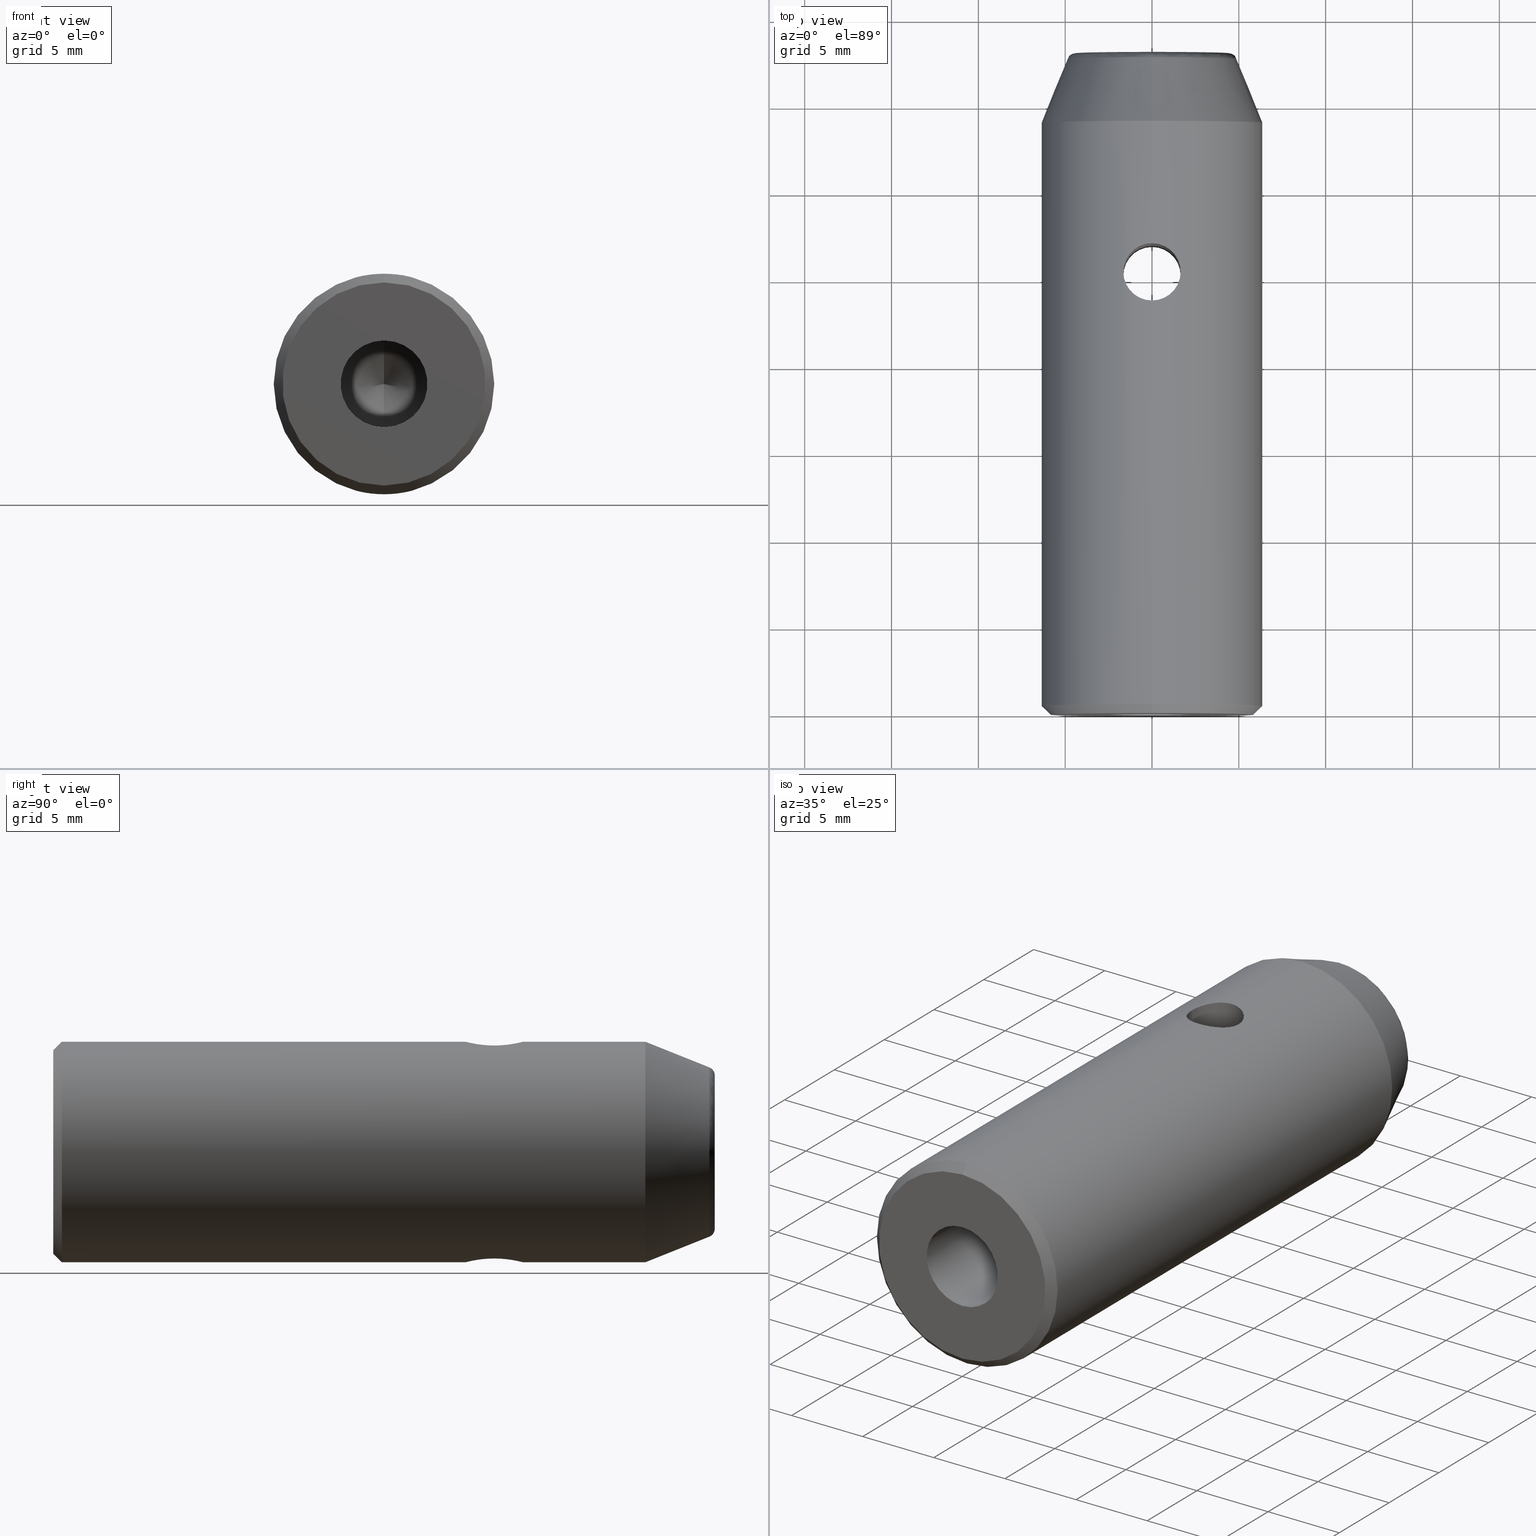
[diagram: canonical four-view strip — front | top / right | iso, engineering-drawing reading convention]
A machine part, canonical four-view strip (front | top / right | iso — engineering-drawing reading convention). The complete STEP part file that produces these views, byte-faithful:
ISO-10303-21;
HEADER;
FILE_DESCRIPTION (( 'STEP AP214' ),
    '1' );
FILE_NAME ('524201.STEP',
    '2019-10-14T01:52:56',
    ( '' ),
    ( '' ),
    'SwSTEP 2.0',
    'SolidWorks 2016',
    '' );
FILE_SCHEMA (( 'AUTOMOTIVE_DESIGN' ));
ENDSEC;

DATA;
#1 = ORIENTED_EDGE ( 'NONE', *, *, #116, .T. ) ;
#2 = VECTOR ( 'NONE', #356, 1000.000000000000000 ) ;
#3 = ADVANCED_FACE ( 'NONE', ( #453 ), #767, .F. ) ;
#4 = CARTESIAN_POINT ( 'NONE',  ( 0.0000000000000000000, 38.10000000000000100, 0.0000000000000000000 ) ) ;
#5 = ORIENTED_EDGE ( 'NONE', *, *, #455, .T. ) ;
#6 = AXIS2_PLACEMENT_3D ( 'NONE', #628, #305, #559 ) ;
#7 = DIRECTION ( 'NONE',  ( 8.659560562354931600E-017, 0.7071067811865475700, -0.7071067811865474600 ) ) ;
#8 = VECTOR ( 'NONE', #600, 1000.000000000000000 ) ;
#9 = SHAPE_DEFINITION_REPRESENTATION ( #572, #769 ) ;
#10 = ORIENTED_EDGE ( 'NONE', *, *, #564, .T. ) ;
#11 = CARTESIAN_POINT ( 'NONE',  ( -1.649999999999999900, 25.39999999999999900, -6.131883886702356200 ) ) ;
#12 =( NAMED_UNIT ( * ) SI_UNIT ( $, .STERADIAN. ) SOLID_ANGLE_UNIT ( ) );
#13 = EDGE_CURVE ( 'NONE', #213, #48, #195, .T. ) ;
#14 = CARTESIAN_POINT ( 'NONE',  ( 0.0000000000000000000, 37.78569533812969900, -4.875721864721072100 ) ) ;
#15 = AXIS2_PLACEMENT_3D ( 'NONE', #402, #146, #38 ) ;
#16 = ORIENTED_EDGE ( 'NONE', *, *, #285, .F. ) ;
#17 =( NAMED_UNIT ( * ) PLANE_ANGLE_UNIT ( ) SI_UNIT ( $, .RADIAN. ) );
#18 = AXIS2_PLACEMENT_3D ( 'NONE', #506, #387, #736 ) ;
#19 = VECTOR ( 'NONE', #178, 1000.000000000000000 ) ;
#20 = CARTESIAN_POINT ( 'NONE',  ( 1.650000000000000100, 25.50879101173561400, -6.131883886702358800 ) ) ;
#21 = CARTESIAN_POINT ( 'NONE',  ( 0.0000000000000000000, 0.5000000000000282000, 0.0000000000000000000 ) ) ;
#22 = EDGE_LOOP ( 'NONE', ( #208, #684, #200, #78 ) ) ;
#23 = CARTESIAN_POINT ( 'NONE',  ( 0.5350354595222538400, 26.96454767843864900, -6.328206572559576400 ) ) ;
#24 = EDGE_LOOP ( 'NONE', ( #558, #426, #527, #247, #420, #229 ) ) ;
#25 = CARTESIAN_POINT ( 'NONE',  ( 0.0000000000000000000, 37.98166839198519500, 4.797332643224573100 ) ) ;
#26 = CARTESIAN_POINT ( 'NONE',  ( 0.0000000000000000000, 0.5000000000000282000, 0.0000000000000000000 ) ) ;
#27 = CARTESIAN_POINT ( 'NONE',  ( 0.0000000000000000000, 38.10000000000000100, 0.0000000000000000000 ) ) ;
#28 = CARTESIAN_POINT ( 'NONE',  ( 0.0000000000000000000, 37.78569533813903500, 4.875721864744421400 ) ) ;
#29 = CARTESIAN_POINT ( 'NONE',  ( 2.020667218593131000E-016, 38.10000000000000100, -1.649999999999998600 ) ) ;
#30 = ORIENTED_EDGE ( 'NONE', *, *, #476, .T. ) ;
#31 = CARTESIAN_POINT ( 'NONE',  ( -1.243166558392556000, 26.49023665135910800, 6.227601864458365300 ) ) ;
#32 = DIRECTION ( 'NONE',  ( 0.0000000000000000000, 1.000000000000000000, 0.0000000000000000000 ) ) ;
#33 = CYLINDRICAL_SURFACE ( 'NONE', #237, 1.649999999999999900 ) ;
#34 = CARTESIAN_POINT ( 'NONE',  ( -1.649999999999999900, 25.39999999999999900, -6.131883886702356200 ) ) ;
#35 = CARTESIAN_POINT ( 'NONE',  ( 0.0000000000000000000, 1.040949779275261000E-016, -2.499999999999998200 ) ) ;
#36 = CARTESIAN_POINT ( 'NONE',  ( 1.014955855173022000, 26.71839968449205600, 6.270254070800323400 ) ) ;
#37 = EDGE_CURVE ( 'NONE', #549, #252, #429, .T. ) ;
#38 = DIRECTION ( 'NONE',  ( 0.0000000000000000000, 0.0000000000000000000, 1.000000000000000000 ) ) ;
#39 = CARTESIAN_POINT ( 'NONE',  ( -6.974444803145777400E-013, 23.74999999999351300, 6.350000000001686300 ) ) ;
#40 = VERTEX_POINT ( 'NONE', #219 ) ;
#41 = CARTESIAN_POINT ( 'NONE',  ( 1.649999999999999900, 25.39999999999999900, -6.349999999999999600 ) ) ;
#42 = DIRECTION ( 'NONE',  ( 0.0000000000000000000, 1.000000000000000000, 0.0000000000000000000 ) ) ;
#43 = ORIENTED_EDGE ( 'NONE', *, *, #399, .T. ) ;
#44 = FACE_OUTER_BOUND ( 'NONE', #336, .T. ) ;
#45 = ORIENTED_EDGE ( 'NONE', *, *, #328, .F. ) ;
#46 = ORIENTED_EDGE ( 'NONE', *, *, #455, .F. ) ;
#47 = AXIS2_PLACEMENT_3D ( 'NONE', #631, #261, #750 ) ;
#48 = VERTEX_POINT ( 'NONE', #14 ) ;
#49 = CARTESIAN_POINT ( 'NONE',  ( -0.1095553982157421400, 27.04999999999999400, -6.349999999999999600 ) ) ;
#50 = CARTESIAN_POINT ( 'NONE',  ( 1.607107112136418200, 24.96753139048988900, -6.143867261766633400 ) ) ;
#51 = FACE_OUTER_BOUND ( 'NONE', #245, .T. ) ;
#52 = CARTESIAN_POINT ( 'NONE',  ( -0.03682806110318779400, 27.04959919837903800, -0.05799023608464262000 ) ) ;
#53 = EDGE_LOOP ( 'NONE', ( #194, #459 ) ) ;
#54 = CARTESIAN_POINT ( 'NONE',  ( -0.05990600339138792100, 27.04891416830398800, -0.03072629399164850100 ) ) ;
#55 = ORIENTED_EDGE ( 'NONE', *, *, #486, .T. ) ;
#56 = CARTESIAN_POINT ( 'NONE',  ( -0.5338866542031179800, 26.96497814379134500, -6.328311955744355000 ) ) ;
#57 = B_SPLINE_CURVE_WITH_KNOTS ( 'NONE', 3,
 ( #39, #409, #474, #352, #743, #689, #446, #196, #127, #626, #72, #65, #449, #257, #747, #741 ),
 .UNSPECIFIED., .F., .F.,
 ( 4, 2, 2, 2, 2, 2, 2, 4 ),
 ( 0.002591141465369751300, 0.002914863869972919800, 0.003238586274576088800, 0.003886031083782429600, 0.004209753488385600300, 0.004533475892988770100, 0.004857198297591940700, 0.005180920702195111400 ),
 .UNSPECIFIED. ) ;
#58 = VERTEX_POINT ( 'NONE', #461 ) ;
#59 = EDGE_CURVE ( 'NONE', #107, #121, #130, .T. ) ;
#60 = CARTESIAN_POINT ( 'NONE',  ( 0.0000000000000000000, 34.10000000000005800, 0.0000000000000000000 ) ) ;
#61 = CONICAL_SURFACE ( 'NONE', #15, 6.349999999997635300, 0.7853981633974482800 ) ;
#62 = CARTESIAN_POINT ( 'NONE',  ( 0.03962274863853397500, 27.04952418526989900, -0.05543872409836748300 ) ) ;
#63 = PRODUCT_RELATED_PRODUCT_CATEGORY ( 'part', '', ( #492 ) ) ;
#64 = ADVANCED_FACE ( 'NONE', ( #276 ), #748, .F. ) ;
#65 = CARTESIAN_POINT ( 'NONE',  ( -1.565299065599910600, 24.86712959491901400, 6.154197663442600300 ) ) ;
#66 =( NAMED_UNIT ( * ) SI_UNIT ( $, .STERADIAN. ) SOLID_ANGLE_UNIT ( ) );
#67 = AXIS2_PLACEMENT_3D ( 'NONE', #380, #535, #412 ) ;
#68 = CARTESIAN_POINT ( 'NONE',  ( 0.007890637950777627500, 27.04998113256871100, 0.06844979020908142900 ) ) ;
#69 = ORIENTED_EDGE ( 'NONE', *, *, #545, .T. ) ;
#70 = ADVANCED_FACE ( 'NONE', ( #262 ), #607, .T. ) ;
#71 = CARTESIAN_POINT ( 'NONE',  ( -0.7338662764141402600, 26.88181516940444000, 6.308259141329042300 ) ) ;
#72 = CARTESIAN_POINT ( 'NONE',  ( -1.482696713118848700, 24.66806934052078400, 6.174619057269596000 ) ) ;
#73 = VERTEX_POINT ( 'NONE', #11 ) ;
#74 = CARTESIAN_POINT ( 'NONE',  ( 0.03387850186020158200, 27.04966216617872700, -0.05982646994643257800 ) ) ;
#75 = VECTOR ( 'NONE', #334, 1000.000000000000000 ) ;
#76 = VERTEX_POINT ( 'NONE', #405 ) ;
#77 = EDGE_CURVE ( 'NONE', #780, #167, #170, .T. ) ;
#78 = ORIENTED_EDGE ( 'NONE', *, *, #251, .T. ) ;
#79 = CIRCLE ( 'NONE', #206, 1.649999999999998600 ) ;
#80 = ORIENTED_EDGE ( 'NONE', *, *, #13, .T. ) ;
#81 = PRODUCT_CONTEXT ( 'NONE', #640, 'mechanical' ) ;
#82 = CARTESIAN_POINT ( 'NONE',  ( 0.0000000000000000000, 28.00000000002000900, 1.649999999926876600 ) ) ;
#83 = CARTESIAN_POINT ( 'NONE',  ( 0.0000000000000000000, -1.136868377216160300E-010, 0.0000000000000000000 ) ) ;
#84 = AXIS2_PLACEMENT_3D ( 'NONE', #660, #357, #100 ) ;
#85 = LINE ( 'NONE', #154, #235 ) ;
#86 = CARTESIAN_POINT ( 'NONE',  ( 9.751443729488841000, 37.78569533813903500, -4.875721864744420500 ) ) ;
#87 = AXIS2_PLACEMENT_3D ( 'NONE', #267, #756, #404 ) ;
#88 = DIRECTION ( 'NONE',  ( -0.0000000000000000000, -1.000000000000000000, -0.0000000000000000000 ) ) ;
#89 = ORIENTED_EDGE ( 'NONE', *, *, #779, .F. ) ;
#90 = CARTESIAN_POINT ( 'NONE',  ( -1.132198936737529400E-015, 38.10000000000000100, 4.622552957823472800 ) ) ;
#91 = DIRECTION ( 'NONE',  ( 0.0000000000000000000, -1.000000000000000000, 0.0000000000000000000 ) ) ;
#92 = ORIENTED_EDGE ( 'NONE', *, *, #615, .T. ) ;
#93 = DIRECTION ( 'NONE',  ( 0.0000000000000000000, 1.000000000000000000, 0.0000000000000000000 ) ) ;
#94 = CARTESIAN_POINT ( 'NONE',  ( -1.649999999999999500, 25.61590744127381200, 6.131883886702359700 ) ) ;
#95 = CARTESIAN_POINT ( 'NONE',  ( 5.875038065970084600E-016, 37.98166839198519500, -4.797332643224573100 ) ) ;
#96 = CARTESIAN_POINT ( 'NONE',  ( 5.971037175192019600E-016, 37.78569533813903500, -4.875721864744421400 ) ) ;
#97 = DIRECTION ( 'NONE',  ( 0.0000000000000000000, 0.0000000000000000000, 1.000000000000000000 ) ) ;
#98 = CARTESIAN_POINT ( 'NONE',  ( -1.080501834277123700E-015, 38.10000000000000100, 4.411483519286585800 ) ) ;
#99 = CARTESIAN_POINT ( 'NONE',  ( -0.01393552564953163100, 27.04994115080656100, 0.06741121392065754800 ) ) ;
#100 = DIRECTION ( 'NONE',  ( 0.0000000000000000000, 0.0000000000000000000, -1.000000000000000000 ) ) ;
#101 = FACE_OUTER_BOUND ( 'NONE', #517, .T. ) ;
#102 = CONICAL_SURFACE ( 'NONE', #131, 1.649999999926876600, 1.029744258676470900 ) ;
#103 = CARTESIAN_POINT ( 'NONE',  ( 3.061616997865598500E-016, 11.00000000002410200, 2.499999999997726300 ) ) ;
#104 = EDGE_CURVE ( 'NONE', #76, #471, #183, .T. ) ;
#105 = CARTESIAN_POINT ( 'NONE',  ( 5.402509171385618700E-016, 38.10000000000000100, -4.411483519286585800 ) ) ;
#106 =( GEOMETRIC_REPRESENTATION_CONTEXT ( 3 ) GLOBAL_UNCERTAINTY_ASSIGNED_CONTEXT ( ( #522 ) ) GLOBAL_UNIT_ASSIGNED_CONTEXT ( ( #714, #134, #66 ) ) REPRESENTATION_CONTEXT ( 'NONE', 'WORKASPACE' ) );
#107 = VERTEX_POINT ( 'NONE', #141 ) ;
#108 = AXIS2_PLACEMENT_3D ( 'NONE', #21, #32, #537 ) ;
#109 = CARTESIAN_POINT ( 'NONE',  ( 1.564989453269653600, 24.86615139927263800, 6.154277929602763200 ) ) ;
#110 = CONICAL_SURFACE ( 'NONE', #238, 6.349999999969213600, 0.3805063771136944500 ) ;
#111 = CARTESIAN_POINT ( 'NONE',  ( 0.7321095869319832500, 23.91740163845396000, -6.308446230829313900 ) ) ;
#112 = FACE_BOUND ( 'NONE', #688, .T. ) ;
#113 = MANIFOLD_SOLID_BREP ( '����-����1', #332 ) ;
#114 = CARTESIAN_POINT ( 'NONE',  ( -0.0003362078887242117800, 27.04999999999999700, -0.06893449166124007700 ) ) ;
#115 = CARTESIAN_POINT ( 'NONE',  ( 0.0000000000000000000, 28.00000000002000900, 1.649999999926876600 ) ) ;
#116 = EDGE_CURVE ( 'NONE', #505, #724, #795, .T. ) ;
#117 = CONICAL_SURFACE ( 'NONE', #313, 2.499999999997726300, 1.029744258685237400 ) ;
#118 = CARTESIAN_POINT ( 'NONE',  ( -0.06199473031990503100, 27.04883564851888500, -0.02592253561083731800 ) ) ;
#119 = CARTESIAN_POINT ( 'NONE',  ( 0.0000000000000000000, 34.10000000000005800, 0.0000000000000000000 ) ) ;
#120 = DIRECTION ( 'NONE',  ( -0.0000000000000000000, -1.000000000000000000, -0.0000000000000000000 ) ) ;
#121 = VERTEX_POINT ( 'NONE', #35 ) ;
#122 = CARTESIAN_POINT ( 'NONE',  ( 0.03629933878442598300, 27.04961512858166000, 0.05836423644891906800 ) ) ;
#123 = CARTESIAN_POINT ( 'NONE',  ( 0.2163660776478328900, 23.74999999999984400, 6.350000000000039600 ) ) ;
#124 = DIRECTION ( 'NONE',  ( 0.0000000000000000000, 0.0000000000000000000, -1.000000000000000000 ) ) ;
#125 = ADVANCED_FACE ( 'NONE', ( #389 ), #135, .T. ) ;
#126 = VERTEX_POINT ( 'NONE', #771 ) ;
#127 = CARTESIAN_POINT ( 'NONE',  ( -1.311561287289496800, 24.39311508807406500, 6.213376047101774300 ) ) ;
#128 = CONICAL_SURFACE ( 'NONE', #288, 2.499999999997726300, 1.029744258685237400 ) ;
#129 = DIRECTION ( 'NONE',  ( -0.0000000000000000000, -1.000000000000000000, -0.0000000000000000000 ) ) ;
#130 = CIRCLE ( 'NONE', #456, 2.499999999999998200 ) ;
#131 = AXIS2_PLACEMENT_3D ( 'NONE', #563, #803, #385 ) ;
#132 = CARTESIAN_POINT ( 'NONE',  ( 0.04795500241280337100, 27.04930297936540000, 0.04789252999281358400 ) ) ;
#133 = EDGE_CURVE ( 'NONE', #738, #505, #632, .T. ) ;
#134 =( NAMED_UNIT ( * ) PLANE_ANGLE_UNIT ( ) SI_UNIT ( $, .RADIAN. ) );
#135 =( BOUNDED_SURFACE ( )  B_SPLINE_SURFACE ( 3, 3, ( 
 ( #653, #712, #226, #98 ),
 ( #289, #281, #648, #90 ),
 ( #95, #536, #416, #656 ),
 ( #159, #344, #596, #284 ) ),
 .UNSPECIFIED., .F., .F., .F. ) 
 B_SPLINE_SURFACE_WITH_KNOTS ( ( 4, 4 ),
 ( 4, 4 ),
 ( 0.0000000000000000000, 1.000000000000000000 ),
 ( 0.0000000000000000000, 1.000000000000000000 ),
 .UNSPECIFIED. ) 
 GEOMETRIC_REPRESENTATION_ITEM ( )  RATIONAL_B_SPLINE_SURFACE ( (
 ( 1.000000000000000000, 0.3333333333333334300, 0.3333333333333334300, 1.000000000000000000),
 ( 0.8853781536308791300, 0.2951260512102931200, 0.2951260512102931200, 0.8853781536308791300),
 ( 0.8853781536308791300, 0.2951260512102931200, 0.2951260512102931200, 0.8853781536308791300),
 ( 1.000000000000000000, 0.3333333333333334300, 0.3333333333333334300, 1.000000000000000000) ) ) 
 REPRESENTATION_ITEM ( '' )  SURFACE ( )  );
#136 = VECTOR ( 'NONE', #156, 1000.000000000000000 ) ;
#137 = DIRECTION ( 'NONE',  ( -0.0000000000000000000, -1.000000000000000000, -0.0000000000000000000 ) ) ;
#138 = EDGE_LOOP ( 'NONE', ( #662, #679, #553, #45 ) ) ;
#139 = DIRECTION ( 'NONE',  ( 0.0000000000000000000, 0.0000000000000000000, 1.000000000000000000 ) ) ;
#140 = EDGE_CURVE ( 'NONE', #549, #58, #57, .T. ) ;
#141 = CARTESIAN_POINT ( 'NONE',  ( 3.061616997868381200E-016, 1.040949779275261000E-016, 2.499999999999998200 ) ) ;
#142 = ORIENTED_EDGE ( 'NONE', *, *, #419, .T. ) ;
#143 = AXIS2_PLACEMENT_3D ( 'NONE', #417, #777, #233 ) ;
#144 = DIRECTION ( 'NONE',  ( 1.049727191138502800E-016, 0.5150380749102115900, -0.8571673007020177400 ) ) ;
#145 = CYLINDRICAL_SURFACE ( 'NONE', #348, 1.649999999999998600 ) ;
#146 = DIRECTION ( 'NONE',  ( -0.0000000000000000000, 1.000000000000000000, 0.0000000000000000000 ) ) ;
#147 = CARTESIAN_POINT ( 'NONE',  ( 7.776507174585692200E-016, 38.10000000000000100, 6.349999999999999600 ) ) ;
#148 = ORIENTED_EDGE ( 'NONE', *, *, #636, .T. ) ;
#149 = ORIENTED_EDGE ( 'NONE', *, *, #59, .F. ) ;
#150 = ORIENTED_EDGE ( 'NONE', *, *, #603, .F. ) ;
#151 = CARTESIAN_POINT ( 'NONE',  ( 0.0000000000000000000, 0.0000000000000000000, -2.499999999999998200 ) ) ;
#152 = DIRECTION ( 'NONE',  ( 0.0000000000000000000, 0.0000000000000000000, 1.000000000000000000 ) ) ;
#153 = CARTESIAN_POINT ( 'NONE',  ( 0.0000000000000000000, 0.4999999999313331500, 6.349999999997635300 ) ) ;
#154 = CARTESIAN_POINT ( 'NONE',  ( 0.0000000000000000000, 38.10000000000000100, -6.349999999999999600 ) ) ;
#155 = CARTESIAN_POINT ( 'NONE',  ( -1.649999999999999900, 25.39999999999999900, 6.131883886702357100 ) ) ;
#156 = DIRECTION ( 'NONE',  ( -0.0000000000000000000, -1.000000000000000000, -0.0000000000000000000 ) ) ;
#157 = CARTESIAN_POINT ( 'NONE',  ( -8.822967038573169800, 38.09999999999999400, -4.411483519286585800 ) ) ;
#158 = DIRECTION ( 'NONE',  ( 0.0000000000000000000, 0.0000000000000000000, -1.000000000000000000 ) ) ;
#159 = CARTESIAN_POINT ( 'NONE',  ( 5.971037175192019600E-016, 37.78569533813903500, -4.875721864744421400 ) ) ;
#160 = CARTESIAN_POINT ( 'NONE',  ( 0.4281799385762387600, 26.99713647002923600, 6.336436576887966700 ) ) ;
#161 = FACE_OUTER_BOUND ( 'NONE', #609, .T. ) ;
#162 = EDGE_CURVE ( 'NONE', #358, #167, #480, .T. ) ;
#163 = CARTESIAN_POINT ( 'NONE',  ( 0.0000000000000000000, 34.10000000000005800, -6.349999999978611400 ) ) ;
#164 = CARTESIAN_POINT ( 'NONE',  ( 0.0000000000000000000, 38.10000000000000100, 0.0000000000000000000 ) ) ;
#165 = DIRECTION ( 'NONE',  ( 0.0000000000000000000, 0.0000000000000000000, -1.000000000000000000 ) ) ;
#166 = ORIENTED_EDGE ( 'NONE', *, *, #77, .T. ) ;
#167 = VERTEX_POINT ( 'NONE', #515 ) ;
#168 = CIRCLE ( 'NONE', #520, 6.349999999999999600 ) ;
#169 = VERTEX_POINT ( 'NONE', #440 ) ;
#170 = CIRCLE ( 'NONE', #286, 1.649999999999998600 ) ;
#171 = ORIENTED_EDGE ( 'NONE', *, *, #713, .F. ) ;
#172 = CARTESIAN_POINT ( 'NONE',  ( 1.311419225063750400, 24.39288479894886300, 6.213408331152567000 ) ) ;
#173 = AXIS2_PLACEMENT_3D ( 'NONE', #452, #437, #373 ) ;
#174 = CARTESIAN_POINT ( 'NONE',  ( -0.05539182298399637100, 27.04907699773490700, 0.03912716110108634800 ) ) ;
#175 = AXIS2_PLACEMENT_3D ( 'NONE', #460, #207, #754 ) ;
#176 = VERTEX_POINT ( 'NONE', #323 ) ;
#177 = DIRECTION ( 'NONE',  ( 0.0000000000000000000, 1.000000000000000000, 0.0000000000000000000 ) ) ;
#178 = DIRECTION ( 'NONE',  ( 0.0000000000000000000, 0.5150380749102115900, 0.8571673007020177400 ) ) ;
#179 = CARTESIAN_POINT ( 'NONE',  ( 0.02271055150463169300, 27.04985723576792400, 0.06526581259837843700 ) ) ;
#180 = ORIENTED_EDGE ( 'NONE', *, *, #674, .T. ) ;
#181 = CARTESIAN_POINT ( 'NONE',  ( 1.242031019180596100, 24.30851429419603700, 6.227825099195503500 ) ) ;
#182 = CARTESIAN_POINT ( 'NONE',  ( 0.04548262385783603800, 27.04938342688336700, -0.05096265540635761000 ) ) ;
#183 = B_SPLINE_CURVE_WITH_KNOTS ( 'NONE', 3,
 ( #264, #20, #526, #752, #210, #587, #457, #273, #702, #23, #466, #696, #529, #393 ),
 .UNSPECIFIED., .F., .F.,
 ( 4, 2, 2, 2, 2, 2, 4 ),
 ( 0.007771194966038239400, 0.008094862658375967900, 0.008418530350713698100, 0.009065865735389156900, 0.009713201120064615700, 0.01003686881240234400, 0.01036053650474007100 ),
 .UNSPECIFIED. ) ;
#184 = EDGE_CURVE ( 'NONE', #176, #358, #613, .T. ) ;
#185 = DIRECTION ( 'NONE',  ( 0.0000000000000000000, 0.0000000000000000000, -1.000000000000000000 ) ) ;
#186 = ORIENTED_EDGE ( 'NONE', *, *, #249, .T. ) ;
#187 = CARTESIAN_POINT ( 'NONE',  ( 0.0000000000000000000, 11.00000000002410200, -2.499999999997726300 ) ) ;
#188 = CARTESIAN_POINT ( 'NONE',  ( 1.650000000000001000, 25.40000000000000200, -6.131883886702356200 ) ) ;
#189 = CIRCLE ( 'NONE', #721, 2.499999999999998200 ) ;
#190 = DIRECTION ( 'NONE',  ( 0.0000000000000000000, 1.000000000000000000, 0.0000000000000000000 ) ) ;
#191 = ADVANCED_FACE ( 'NONE', ( #161 ), #102, .F. ) ;
#192 = AXIS2_PLACEMENT_3D ( 'NONE', #737, #190, #443 ) ;
#193 = CARTESIAN_POINT ( 'NONE',  ( 0.04266567767055019800, 27.04945677135143700, 0.05355096243311442700 ) ) ;
#194 = ORIENTED_EDGE ( 'NONE', *, *, #359, .F. ) ;
#195 = CIRCLE ( 'NONE', #175, 0.4999999999999995600 ) ;
#196 = CARTESIAN_POINT ( 'NONE',  ( -1.243679195451995000, 24.31031017472229600, 6.227502740258007200 ) ) ;
#197 = CARTESIAN_POINT ( 'NONE',  ( 7.294886176565602900E-016, 27.05000000000000100, 6.350000000000000500 ) ) ;
#198 = CARTESIAN_POINT ( 'NONE',  ( 7.776507174559500000E-016, 34.10000000000005800, 6.349999999978611400 ) ) ;
#199 = ADVANCED_FACE ( 'NONE', ( #51 ), #303, .T. ) ;
#200 = ORIENTED_EDGE ( 'NONE', *, *, #697, .T. ) ;
#201 = VERTEX_POINT ( 'NONE', #682 ) ;
#202 = CIRCLE ( 'NONE', #47, 0.4999999999999995600 ) ;
#203 = CARTESIAN_POINT ( 'NONE',  ( 2.476897024649141700E-021, 23.75000000000000000, -6.349999999999999600 ) ) ;
#204 = APPLICATION_CONTEXT ( 'automotive_design' ) ;
#205 = AXIS2_PLACEMENT_3D ( 'NONE', #760, #765, #704 ) ;
#206 = AXIS2_PLACEMENT_3D ( 'NONE', #271, #415, #758 ) ;
#207 = DIRECTION ( 'NONE',  ( -1.000000000000000000, 0.0000000000000000000, -1.224646799147353200E-016 ) ) ;
#208 = ORIENTED_EDGE ( 'NONE', *, *, #476, .F. ) ;
#209 = FACE_OUTER_BOUND ( 'NONE', #463, .T. ) ;
#210 = CARTESIAN_POINT ( 'NONE',  ( 1.565099434750583600, 25.93344135047030000, -6.154248455909361800 ) ) ;
#211 = SURFACE_STYLE_USAGE ( .BOTH. , #469 ) ;
#212 = CARTESIAN_POINT ( 'NONE',  ( -1.596674049841366300, 24.97010407432583500, -6.146024190140391100 ) ) ;
#213 = VERTEX_POINT ( 'NONE', #806 ) ;
#214 = ORIENTED_EDGE ( 'NONE', *, *, #59, .T. ) ;
#215 = CARTESIAN_POINT ( 'NONE',  ( 0.0000000000000000000, 38.10000000000000100, 0.0000000000000000000 ) ) ;
#216 = SURFACE_STYLE_USAGE ( .BOTH. , #333 ) ;
#217 = CARTESIAN_POINT ( 'NONE',  ( -8.822967038573169800, 38.09999999999999400, 4.411483519286585800 ) ) ;
#218 = DIRECTION ( 'NONE',  ( 0.0000000000000000000, -1.000000000000000000, 0.0000000000000000000 ) ) ;
#219 = CARTESIAN_POINT ( 'NONE',  ( 0.0000000000000000000, 38.10000000000000100, 4.411483519286585800 ) ) ;
#220 = CARTESIAN_POINT ( 'NONE',  ( 1.440522225424550400, 26.23286600692731300, 6.185034426022237900 ) ) ;
#221 = FACE_OUTER_BOUND ( 'NONE', #717, .T. ) ;
#222 = STYLED_ITEM ( 'NONE', ( #410 ), #113 ) ;
#223 = CARTESIAN_POINT ( 'NONE',  ( -1.007005038130151600, 24.08852948655009000, -6.270292001546161800 ) ) ;
#224 = FACE_OUTER_BOUND ( 'NONE', #701, .T. ) ;
#225 = CARTESIAN_POINT ( 'NONE',  ( -1.311126599214326200, 26.40749193462279700, 6.213470141901423100 ) ) ;
#226 = CARTESIAN_POINT ( 'NONE',  ( -8.822967038573171500, 38.10000000000000100, 4.411483519286584900 ) ) ;
#227 = CARTESIAN_POINT ( 'NONE',  ( 0.02732467749160948100, 27.04978798518863000, -0.06331700998621971100 ) ) ;
#228 = CARTESIAN_POINT ( 'NONE',  ( -0.4300337873983646200, 23.80334062810187100, -6.336315825479684500 ) ) ;
#229 = ORIENTED_EDGE ( 'NONE', *, *, #236, .F. ) ;
#230 = DIRECTION ( 'NONE',  ( 0.0000000000000000000, 0.0000000000000000000, -1.000000000000000000 ) ) ;
#231 = ORIENTED_EDGE ( 'NONE', *, *, #13, .F. ) ;
#232 = DIRECTION ( 'NONE',  ( 1.000000000000000000, 0.0000000000000000000, 0.0000000000000000000 ) ) ;
#233 = DIRECTION ( 'NONE',  ( 0.0000000000000000000, 0.0000000000000000000, -1.000000000000000000 ) ) ;
#234 = EDGE_LOOP ( 'NONE', ( #726, #43, #666, #657 ) ) ;
#235 = VECTOR ( 'NONE', #88, 1000.000000000000000 ) ;
#236 = EDGE_CURVE ( 'NONE', #58, #724, #799, .T. ) ;
#237 = AXIS2_PLACEMENT_3D ( 'NONE', #421, #482, #599 ) ;
#238 = AXIS2_PLACEMENT_3D ( 'NONE', #503, #561, #185 ) ;
#239 = EDGE_LOOP ( 'NONE', ( #633, #576, #664 ) ) ;
#240 = ORIENTED_EDGE ( 'NONE', *, *, #794, .T. ) ;
#241 = CARTESIAN_POINT ( 'NONE',  ( -1.649999999999999200, 25.61635167910645400, -6.131883886702354400 ) ) ;
#242 = CARTESIAN_POINT ( 'NONE',  ( 1.090360761903063700, 24.15694258391376400, -6.256165553586001200 ) ) ;
#243 = VECTOR ( 'NONE', #746, 1000.000000000000000 ) ;
#244 = CARTESIAN_POINT ( 'NONE',  ( -0.04264173365966274200, 27.04944890267946500, -0.05299091659055940600 ) ) ;
#245 = EDGE_LOOP ( 'NONE', ( #533, #1, #311, #513, #347, #618, #171, #186, #382, #337 ) ) ;
#246 = B_SPLINE_CURVE_WITH_KNOTS ( 'NONE', 3,
 ( #680, #378, #718, #778, #227, #74, #62, #182, #377, #444, #448, #798, #809, #805, #516, #802, #439, #571, #678, #567, #384, #132, #193, #122, #562, #179, #614, #68, #729, #504, #617 ),
 .UNSPECIFIED., .F., .F.,
 ( 4, 3, 3, 3, 3, 3, 3, 3, 3, 3, 4 ),
 ( 6.933915001524761500E-005, 9.006218883478558300E-005, 0.0001117278780713333200, 0.0001338289604498062800, 0.0001566356009467518000, 0.0001801127260809480900, 0.0002039603812000894200, 0.0002277329915608278200, 0.0002509885571451139000, 0.0002734797462215894900, 0.0002813343657787215500 ),
 .UNSPECIFIED. ) ;
#247 = ORIENTED_EDGE ( 'NONE', *, *, #603, .T. ) ;
#248 = CARTESIAN_POINT ( 'NONE',  ( -0.05928680787046030500, 27.04893674117000700, 0.03244835800942789900 ) ) ;
#249 = EDGE_CURVE ( 'NONE', #547, #76, #433, .T. ) ;
#250 = CARTESIAN_POINT ( 'NONE',  ( 1.639197571083344900, 25.18281529781135600, 6.134819328885313000 ) ) ;
#251 = EDGE_CURVE ( 'NONE', #121, #107, #693, .T. ) ;
#252 = VERTEX_POINT ( 'NONE', #647 ) ;
#253 = VECTOR ( 'NONE', #716, 1000.000000000000000 ) ;
#254 = CARTESIAN_POINT ( 'NONE',  ( 0.0000000000000000000, 11.00000000000000000, 0.0000000000000000000 ) ) ;
#255 = ADVANCED_FACE ( 'NONE', ( #521 ), #287, .F. ) ;
#256 = ORIENTED_EDGE ( 'NONE', *, *, #184, .T. ) ;
#257 = CARTESIAN_POINT ( 'NONE',  ( -1.639194538816095600, 25.18254111471305700, 6.134820688103351600 ) ) ;
#258 = ADVANCED_FACE ( 'NONE', ( #224 ), #791, .T. ) ;
#259 = CARTESIAN_POINT ( 'NONE',  ( 0.0000000000000000000, 38.10000000000000100, 1.649999999999998600 ) ) ;
#260 = FACE_OUTER_BOUND ( 'NONE', #138, .T. ) ;
#261 = DIRECTION ( 'NONE',  ( 1.000000000000000000, 0.0000000000000000000, 0.0000000000000000000 ) ) ;
#262 = FACE_OUTER_BOUND ( 'NONE', #669, .T. ) ;
#263 = AXIS2_PLACEMENT_3D ( 'NONE', #27, #329, #335 ) ;
#264 = CARTESIAN_POINT ( 'NONE',  ( 1.650000000000001000, 25.40000000000000200, -6.131883886702356200 ) ) ;
#265 = FACE_OUTER_BOUND ( 'NONE', #706, .T. ) ;
#266 = APPLICATION_PROTOCOL_DEFINITION ( 'draft international standard', 'automotive_design', 1998, #640 ) ;
#267 = CARTESIAN_POINT ( 'NONE',  ( 0.0000000000000000000, 0.0000000000000000000, 0.0000000000000000000 ) ) ;
#268 = EDGE_CURVE ( 'NONE', #318, #176, #580, .T. ) ;
#269 = ORIENTED_EDGE ( 'NONE', *, *, #431, .F. ) ;
#270 = ORIENTED_EDGE ( 'NONE', *, *, #249, .F. ) ;
#271 = CARTESIAN_POINT ( 'NONE',  ( 0.0000000000000000000, 38.10000000000000100, 0.0000000000000000000 ) ) ;
#272 = AXIS2_PLACEMENT_3D ( 'NONE', #734, #379, #124 ) ;
#273 = CARTESIAN_POINT ( 'NONE',  ( 1.015924515481554400, 26.71765271471627700, -6.270094450216704200 ) ) ;
#274 = CARTESIAN_POINT ( 'NONE',  ( 1.639209318810492800, 25.61733569143226000, 6.134816686754136900 ) ) ;
#275 = CIRCLE ( 'NONE', #422, 5.849999999952615300 ) ;
#276 = FACE_OUTER_BOUND ( 'NONE', #369, .T. ) ;
#277 = CARTESIAN_POINT ( 'NONE',  ( 0.0000000000000000000, 38.10000000000000100, 4.411483519286585800 ) ) ;
#278 = CARTESIAN_POINT ( 'NONE',  ( 9.751443729488841000, 37.78569533813903500, 4.875721864744421400 ) ) ;
#279 = DIRECTION ( 'NONE',  ( -0.0000000000000000000, -1.000000000000000000, -0.0000000000000000000 ) ) ;
#280 = CARTESIAN_POINT ( 'NONE',  ( -1.091037770774663200, 26.64246353291168400, 6.256047047205924200 ) ) ;
#281 = CARTESIAN_POINT ( 'NONE',  ( -9.245105915646943700, 38.09999999999999400, -4.622552957823473600 ) ) ;
#282 = CARTESIAN_POINT ( 'NONE',  ( 5.402509171385618700E-016, 38.10000000000000100, -4.411483519286585800 ) ) ;
#283 = UNCERTAINTY_MEASURE_WITH_UNIT (LENGTH_MEASURE( 1.000000000000000100E-005 ), #541, 'distance_accuracy_value', 'NONE');
#284 = CARTESIAN_POINT ( 'NONE',  ( -1.194207435038403900E-015, 37.78569533813903500, 4.875721864744421400 ) ) ;
#285 = EDGE_CURVE ( 'NONE', #759, #252, #367, .T. ) ;
#286 = AXIS2_PLACEMENT_3D ( 'NONE', #643, #699, #152 ) ;
#287 = CYLINDRICAL_SURFACE ( 'NONE', #67, 2.499999999999998200 ) ;
#288 = AXIS2_PLACEMENT_3D ( 'NONE', #707, #218, #349 ) ;
#289 = CARTESIAN_POINT ( 'NONE',  ( 5.660994683687646900E-016, 38.10000000000000100, -4.622552957823472800 ) ) ;
#290 = DIRECTION ( 'NONE',  ( 0.0000000000000000000, -0.0000000000000000000, 1.000000000000000000 ) ) ;
#291 = CARTESIAN_POINT ( 'NONE',  ( 2.476897024649141700E-021, 23.75000000000000000, -6.349999999999999600 ) ) ;
#292 = ORIENTED_EDGE ( 'NONE', *, *, #140, .T. ) ;
#293 = ORIENTED_EDGE ( 'NONE', *, *, #268, .F. ) ;
#294 = LINE ( 'NONE', #408, #722 ) ;
#295 = ORIENTED_EDGE ( 'NONE', *, *, #501, .T. ) ;
#296 = CARTESIAN_POINT ( 'NONE',  ( -1.606276605166880600, 25.83421013240501900, -6.144068416708106100 ) ) ;
#297 = VERTEX_POINT ( 'NONE', #532 ) ;
#298 = EDGE_LOOP ( 'NONE', ( #800, #256, #523, #321 ) ) ;
#299 = CARTESIAN_POINT ( 'NONE',  ( 1.242568029519241400, 24.30908156913475400, -6.227721791874661700 ) ) ;
#300 = CARTESIAN_POINT ( 'NONE',  ( -1.007227712668181200, 26.71133404291139600, -6.270261411513294200 ) ) ;
#301 = PRESENTATION_LAYER_ASSIGNMENT (  '', '', ( #222 ) ) ;
#302 = CARTESIAN_POINT ( 'NONE',  ( -0.2171877504661367000, 27.03919783394104200, -6.347168860592018900 ) ) ;
#303 = CYLINDRICAL_SURFACE ( 'NONE', #403, 6.349999999999999600 ) ;
#304 = CARTESIAN_POINT ( 'NONE',  ( -0.06198711566624595000, 27.04883522448162800, 0.02541768641283994500 ) ) ;
#305 = DIRECTION ( 'NONE',  ( -0.0000000000000000000, 1.000000000000000000, 0.0000000000000000000 ) ) ;
#306 = CARTESIAN_POINT ( 'NONE',  ( 1.431218338206685400, 24.57192060740773300, 6.186911793607844600 ) ) ;
#307 = ORIENTED_EDGE ( 'NONE', *, *, #683, .F. ) ;
#308 = DIRECTION ( 'NONE',  ( -0.0000000000000000000, -1.000000000000000000, -0.0000000000000000000 ) ) ;
#309 = EDGE_CURVE ( 'NONE', #724, #297, #676, .T. ) ;
#310 = MECHANICAL_DESIGN_GEOMETRIC_PRESENTATION_REPRESENTATION (  '', ( #700 ), #735 ) ;
#311 = ORIENTED_EDGE ( 'NONE', *, *, #309, .T. ) ;
#312 = CARTESIAN_POINT ( 'NONE',  ( 9.245105915646943700, 38.09999999999999400, 4.622552957823472800 ) ) ;
#313 = AXIS2_PLACEMENT_3D ( 'NONE', #775, #91, #230 ) ;
#314 = LINE ( 'NONE', #187, #243 ) ;
#315 = CARTESIAN_POINT ( 'NONE',  ( 0.0000000000000000000, 27.04999999999999700, -6.349999999999999600 ) ) ;
#316 = ADVANCED_FACE ( 'NONE', ( #538 ), #117, .F. ) ;
#317 = DIRECTION ( 'NONE',  ( 0.0000000000000000000, 1.000000000000000000, 0.0000000000000000000 ) ) ;
#318 = VERTEX_POINT ( 'NONE', #654 ) ;
#319 = ORIENTED_EDGE ( 'NONE', *, *, #794, .F. ) ;
#320 = UNCERTAINTY_MEASURE_WITH_UNIT (LENGTH_MEASURE( 1.000000000000000100E-005 ), #763, 'distance_accuracy_value', 'NONE');
#321 = ORIENTED_EDGE ( 'NONE', *, *, #77, .F. ) ;
#322 = CARTESIAN_POINT ( 'NONE',  ( 7.776507174582797000E-016, 0.4999999999313331500, -6.349999999997635300 ) ) ;
#323 = CARTESIAN_POINT ( 'NONE',  ( 2.020667218548356800E-016, 28.00000000002000900, -1.649999999926876600 ) ) ;
#324 = CARTESIAN_POINT ( 'NONE',  ( 0.0000000000000000000, 38.10000000000000100, 0.0000000000000000000 ) ) ;
#325 = CARTESIAN_POINT ( 'NONE',  ( 0.0000000000000000000, 37.78569533812969900, 0.0000000000000000000 ) ) ;
#326 = CIRCLE ( 'NONE', #143, 2.499999999999998200 ) ;
#327 = EDGE_CURVE ( 'NONE', #213, #40, #652, .T. ) ;
#328 = EDGE_CURVE ( 'NONE', #201, #252, #672, .T. ) ;
#329 = DIRECTION ( 'NONE',  ( 0.0000000000000000000, 1.000000000000000000, 0.0000000000000000000 ) ) ;
#330 = EDGE_LOOP ( 'NONE', ( #392, #46 ) ) ;
#331 = FILL_AREA_STYLE_COLOUR ( '', #793 ) ;
#332 = CLOSED_SHELL ( 'NONE', ( #125, #199, #451, #70, #625, #508, #64, #568, #686, #691, #514, #740, #620, #258, #445, #191, #381, #255, #3, #316 ) ) ;
#333 = SURFACE_SIDE_STYLE ('',( #575 ) ) ;
#334 = DIRECTION ( 'NONE',  ( 0.0000000000000000000, 0.0000000000000000000, 1.000000000000000000 ) ) ;
#335 = DIRECTION ( 'NONE',  ( 0.0000000000000000000, 0.0000000000000000000, 1.000000000000000000 ) ) ;
#336 = EDGE_LOOP ( 'NONE', ( #698, #512, #720, #604 ) ) ;
#337 = ORIENTED_EDGE ( 'NONE', *, *, #674, .F. ) ;
#338 = ORIENTED_EDGE ( 'NONE', *, *, #328, .T. ) ;
#339 = CARTESIAN_POINT ( 'NONE',  ( -1.639106060326588600, 25.18203245345069500, -6.134844145553199900 ) ) ;
#340 = CARTESIAN_POINT ( 'NONE',  ( 0.0000000000000000000, 1.040949779275261000E-016, 0.0000000000000000000 ) ) ;
#341 = CARTESIAN_POINT ( 'NONE',  ( 1.649999999999999900, 25.39999999999999900, 6.131883886702356200 ) ) ;
#342 = CARTESIAN_POINT ( 'NONE',  ( 6.873772174861462700E-016, 37.78569533812969900, 4.875721864721072100 ) ) ;
#343 = CARTESIAN_POINT ( 'NONE',  ( -1.482631616215291700, 26.13203970768170600, 6.174634385605515700 ) ) ;
#344 = CARTESIAN_POINT ( 'NONE',  ( -9.751443729488841000, 37.78569533813903500, -4.875721864744422300 ) ) ;
#345 = CARTESIAN_POINT ( 'NONE',  ( 1.317750811306551000, 26.41579816662547800, 6.213674782255584000 ) ) ;
#346 = ORIENTED_EDGE ( 'NONE', *, *, #418, .T. ) ;
#347 = ORIENTED_EDGE ( 'NONE', *, *, #37, .T. ) ;
#348 = AXIS2_PLACEMENT_3D ( 'NONE', #324, #694, #749 ) ;
#349 = DIRECTION ( 'NONE',  ( 0.0000000000000000000, 0.0000000000000000000, -1.000000000000000000 ) ) ;
#350 = CARTESIAN_POINT ( 'NONE',  ( -0.8284832080373340000, 26.83094618766205400, 6.296365815920687200 ) ) ;
#351 = SURFACE_STYLE_FILL_AREA ( #398 ) ;
#352 = CARTESIAN_POINT ( 'NONE',  ( -0.4299124293967076000, 23.80333009910976800, 6.336318638089350600 ) ) ;
#353 = CARTESIAN_POINT ( 'NONE',  ( 0.0000000000000000000, 38.10000000000000100, 4.622552957823472800 ) ) ;
#354 = CARTESIAN_POINT ( 'NONE',  ( -0.1079389430111860900, 23.75000000000000400, -6.350000000000002300 ) ) ;
#355 =( NAMED_UNIT ( * ) SI_UNIT ( $, .STERADIAN. ) SOLID_ANGLE_UNIT ( ) );
#356 = DIRECTION ( 'NONE',  ( 1.049727191144032100E-016, -0.5150380749026971500, 0.8571673007065328000 ) ) ;
#357 = DIRECTION ( 'NONE',  ( 0.0000000000000000000, -1.000000000000000000, 0.0000000000000000000 ) ) ;
#358 = VERTEX_POINT ( 'NONE', #82 ) ;
#359 = EDGE_CURVE ( 'NONE', #40, #213, #494, .T. ) ;
#360 = FACE_OUTER_BOUND ( 'NONE', #787, .T. ) ;
#361 = ORIENTED_EDGE ( 'NONE', *, *, #577, .F. ) ;
#362 = CARTESIAN_POINT ( 'NONE',  ( 1.007614113568351200, 24.08896526596758700, -6.270198711007579600 ) ) ;
#363 = CARTESIAN_POINT ( 'NONE',  ( -0.7335554017690678600, 26.88192038335946100, -6.308285317048411200 ) ) ;
#364 = ORIENTED_EDGE ( 'NONE', *, *, #525, .F. ) ;
#365 = CARTESIAN_POINT ( 'NONE',  ( 1.431005737599824200, 24.57162161072697500, -6.186957916566242900 ) ) ;
#366 = CARTESIAN_POINT ( 'NONE',  ( -0.01593045956839891900, 27.04993769464106300, -0.06737143826049245300 ) ) ;
#367 = LINE ( 'NONE', #153, #753 ) ;
#368 = CARTESIAN_POINT ( 'NONE',  ( -0.02287066732061754400, 27.04984148710605000, -0.06475025196469262600 ) ) ;
#369 = EDGE_LOOP ( 'NONE', ( #602, #30, #214, #394 ) ) ;
#370 = EDGE_CURVE ( 'NONE', #126, #502, #326, .T. ) ;
#371 = CARTESIAN_POINT ( 'NONE',  ( 1.481957985968015900, 24.66652413456922600, 6.174797919889083000 ) ) ;
#372 = EDGE_CURVE ( 'NONE', #534, #502, #436, .T. ) ;
#373 = DIRECTION ( 'NONE',  ( 0.0000000000000000000, 0.0000000000000000000, 1.000000000000000000 ) ) ;
#374 = AXIS2_PLACEMENT_3D ( 'NONE', #215, #773, #158 ) ;
#375 = CARTESIAN_POINT ( 'NONE',  ( -1.441516095265473500, 26.23108021182086300, -6.184798508325643600 ) ) ;
#376 = ORIENTED_EDGE ( 'NONE', *, *, #116, .F. ) ;
#377 = CARTESIAN_POINT ( 'NONE',  ( 0.05065683125258969200, 27.04922734156618000, -0.04543718228696080200 ) ) ;
#378 = CARTESIAN_POINT ( 'NONE',  ( 0.006912181153795887400, 27.04999999999999700, -0.06893449166124006300 ) ) ;
#379 = DIRECTION ( 'NONE',  ( 0.0000000000000000000, -1.000000000000000000, 0.0000000000000000000 ) ) ;
#380 = CARTESIAN_POINT ( 'NONE',  ( 0.0000000000000000000, 0.0000000000000000000, 0.0000000000000000000 ) ) ;
#381 = ADVANCED_FACE ( 'NONE', ( #112, #490 ), #481, .T. ) ;
#382 = ORIENTED_EDGE ( 'NONE', *, *, #104, .T. ) ;
#383 = CARTESIAN_POINT ( 'NONE',  ( 2.476897024649141700E-021, 23.75000000000000000, -6.349999999999999600 ) ) ;
#384 = CARTESIAN_POINT ( 'NONE',  ( 0.05336199116492004700, 27.04914576618995500, 0.04210822253388345900 ) ) ;
#385 = DIRECTION ( 'NONE',  ( 0.0000000000000000000, 0.0000000000000000000, 1.000000000000000000 ) ) ;
#386 = CARTESIAN_POINT ( 'NONE',  ( 0.0000000000000000000, 12.50215154749412200, -1.136868377216160300E-010 ) ) ;
#387 = DIRECTION ( 'NONE',  ( -0.0000000000000000000, -1.000000000000000000, -0.0000000000000000000 ) ) ;
#388 = CIRCLE ( 'NONE', #546, 6.349999999999999600 ) ;
#389 = FACE_OUTER_BOUND ( 'NONE', #447, .T. ) ;
#390 = EDGE_CURVE ( 'NONE', #169, #318, #498, .T. ) ;
#391 = VERTEX_POINT ( 'NONE', #438 ) ;
#392 = ORIENTED_EDGE ( 'NONE', *, *, #390, .F. ) ;
#393 = CARTESIAN_POINT ( 'NONE',  ( 0.0000000000000000000, 27.04999999999999700, -6.349999999999999600 ) ) ;
#394 = ORIENTED_EDGE ( 'NONE', *, *, #697, .F. ) ;
#395 = APPLICATION_PROTOCOL_DEFINITION ( 'draft international standard', 'automotive_design', 1998, #204 ) ;
#396 = VECTOR ( 'NONE', #279, 1000.000000000000000 ) ;
#397 = CARTESIAN_POINT ( 'NONE',  ( 7.776507174585692200E-016, 38.10000000000000100, 6.349999999999999600 ) ) ;
#398 = FILL_AREA_STYLE ('',( #331 ) ) ;
#399 = EDGE_CURVE ( 'NONE', #176, #780, #807, .T. ) ;
#400 = ORIENTED_EDGE ( 'NONE', *, *, #501, .F. ) ;
#401 = DIRECTION ( 'NONE',  ( -0.0000000000000000000, -1.000000000000000000, -0.0000000000000000000 ) ) ;
#402 = CARTESIAN_POINT ( 'NONE',  ( 0.0000000000000000000, 0.4999999999313331500, 0.0000000000000000000 ) ) ;
#403 = AXIS2_PLACEMENT_3D ( 'NONE', #4, #511, #621 ) ;
#404 = DIRECTION ( 'NONE',  ( 0.0000000000000000000, 0.0000000000000000000, -1.000000000000000000 ) ) ;
#405 = CARTESIAN_POINT ( 'NONE',  ( 1.650000000000001000, 25.40000000000000200, -6.131883886702356200 ) ) ;
#406 = CARTESIAN_POINT ( 'NONE',  ( 9.594665286449144400, 37.98166839198519500, -4.797332643224572200 ) ) ;
#407 = LINE ( 'NONE', #589, #396 ) ;
#408 = CARTESIAN_POINT ( 'NONE',  ( 0.0000000000000000000, 34.10000000002355600, -6.349999999969213600 ) ) ;
#409 = CARTESIAN_POINT ( 'NONE',  ( -0.1081261642684578500, 23.75000000000007500, 6.349999999999980100 ) ) ;
#410 = PRESENTATION_STYLE_ASSIGNMENT (( #216 ) ) ;
#411 = CARTESIAN_POINT ( 'NONE',  ( -1.649999999999999900, 25.39999999999999900, -6.349999999999999600 ) ) ;
#412 = DIRECTION ( 'NONE',  ( 0.0000000000000000000, 0.0000000000000000000, -1.000000000000000000 ) ) ;
#413 = CARTESIAN_POINT ( 'NONE',  ( 9.245105915646943700, 38.09999999999999400, -4.622552957823471900 ) ) ;
#414 = CARTESIAN_POINT ( 'NONE',  ( -0.02784907781936057900, 27.04977643169878800, 0.06306528732341903900 ) ) ;
#415 = DIRECTION ( 'NONE',  ( -0.0000000000000000000, -1.000000000000000000, -0.0000000000000000000 ) ) ;
#416 = CARTESIAN_POINT ( 'NONE',  ( -9.594665286449146200, 37.98166839198519500, 4.797332643224570400 ) ) ;
#417 = CARTESIAN_POINT ( 'NONE',  ( 0.0000000000000000000, 11.00000000000000000, 0.0000000000000000000 ) ) ;
#418 = EDGE_CURVE ( 'NONE', #471, #73, #556, .T. ) ;
#419 = EDGE_CURVE ( 'NONE', #169, #358, #784, .T. ) ;
#420 = ORIENTED_EDGE ( 'NONE', *, *, #309, .F. ) ;
#421 = CARTESIAN_POINT ( 'NONE',  ( 0.0000000000000000000, 25.39999999999999900, -6.349999999999999600 ) ) ;
#422 = AXIS2_PLACEMENT_3D ( 'NONE', #83, #531, #97 ) ;
#423 = CARTESIAN_POINT ( 'NONE',  ( -0.004672885302069480400, 27.04999999999999700, 0.06893449166125878400 ) ) ;
#424 = CIRCLE ( 'NONE', #583, 4.875721864721072100 ) ;
#425 = VECTOR ( 'NONE', #144, 1000.000000000000000 ) ;
#426 = ORIENTED_EDGE ( 'NONE', *, *, #418, .F. ) ;
#427 = LINE ( 'NONE', #151, #671 ) ;
#428 = CARTESIAN_POINT ( 'NONE',  ( -0.008427006138372038600, 27.04999515709756300, -0.06881049946441653000 ) ) ;
#429 = LINE ( 'NONE', #397, #665 ) ;
#430 = CARTESIAN_POINT ( 'NONE',  ( -0.06664342830327904500, 27.04865358807239400, 0.002588668568863807800 ) ) ;
#431 = EDGE_CURVE ( 'NONE', #297, #549, #730, .T. ) ;
#432 = CARTESIAN_POINT ( 'NONE',  ( 1.649999999999999900, 25.39999999999999900, 6.131883886702356200 ) ) ;
#433 = B_SPLINE_CURVE_WITH_KNOTS ( 'NONE', 3,
 ( #383, #745, #808, #111, #608, #362, #242, #299, #723, #365, #789, #50, #667, #188 ),
 .UNSPECIFIED., .F., .F.,
 ( 4, 2, 2, 2, 2, 2, 4 ),
 ( 0.005180969610249816500, 0.005828525949196921800, 0.006152304118670475300, 0.006476082288144027900, 0.006799860457617580600, 0.007123638627091134100, 0.007771194966038239400 ),
 .UNSPECIFIED. ) ;
#434 = CARTESIAN_POINT ( 'NONE',  ( -0.001008592743562750900, 27.04999969173956800, -0.06892659973045232900 ) ) ;
#435 = VECTOR ( 'NONE', #7, 1000.000000000000000 ) ;
#436 = LINE ( 'NONE', #103, #2 ) ;
#437 = DIRECTION ( 'NONE',  ( -0.0000000000000000000, 1.000000000000000000, 0.0000000000000000000 ) ) ;
#438 = CARTESIAN_POINT ( 'NONE',  ( 7.470345474810455500E-016, -1.136868377216160300E-010, -5.849999999952615300 ) ) ;
#439 = CARTESIAN_POINT ( 'NONE',  ( 0.06598840982570131100, 27.04868002361130800, 0.01275166588333031700 ) ) ;
#440 = CARTESIAN_POINT ( 'NONE',  ( 1.877513054397778300E-013, 27.05000000000005800, 0.06893449166274927300 ) ) ;
#441 = ORIENTED_EDGE ( 'NONE', *, *, #133, .F. ) ;
#442 = EDGE_CURVE ( 'NONE', #358, #176, #465, .T. ) ;
#443 = DIRECTION ( 'NONE',  ( 0.0000000000000000000, -0.0000000000000000000, 1.000000000000000000 ) ) ;
#444 = CARTESIAN_POINT ( 'NONE',  ( 0.05477023107902872400, 27.04909072575997100, -0.03931718069920725500 ) ) ;
#445 = ADVANCED_FACE ( 'NONE', ( #450, #209 ), #790, .F. ) ;
#446 = CARTESIAN_POINT ( 'NONE',  ( -1.014722202889219500, 24.08110414474132800, 6.270323128471782900 ) ) ;
#447 = EDGE_LOOP ( 'NONE', ( #644, #80, #715, #804 ) ) ;
#448 = CARTESIAN_POINT ( 'NONE',  ( 0.05901355625555519000, 27.04894979482340400, -0.03300387348049758900 ) ) ;
#449 = CARTESIAN_POINT ( 'NONE',  ( -1.596663809953357000, 24.96998630154379500, 6.146027032909197300 ) ) ;
#450 = FACE_BOUND ( 'NONE', #783, .T. ) ;
#451 = ADVANCED_FACE ( 'NONE', ( #360 ), #110, .T. ) ;
#452 = CARTESIAN_POINT ( 'NONE',  ( 0.0000000000000000000, -1.136868377216160300E-010, 0.0000000000000000000 ) ) ;
#453 = FACE_OUTER_BOUND ( 'NONE', #298, .T. ) ;
#454 = DIRECTION ( 'NONE',  ( 0.0000000000000000000, -1.000000000000000000, 0.0000000000000000000 ) ) ;
#455 = EDGE_CURVE ( 'NONE', #318, #169, #246, .T. ) ;
#456 = AXIS2_PLACEMENT_3D ( 'NONE', #340, #137, #579 ) ;
#457 = CARTESIAN_POINT ( 'NONE',  ( 1.318491683776829700, 26.41483544359021400, -6.213514843919348600 ) ) ;
#458 = PRESENTATION_LAYER_ASSIGNMENT (  '', '', ( #700 ) ) ;
#459 = ORIENTED_EDGE ( 'NONE', *, *, #327, .F. ) ;
#460 = CARTESIAN_POINT ( 'NONE',  ( 5.402509171385618700E-016, 37.60000000000000100, -4.411483519286585800 ) ) ;
#461 = CARTESIAN_POINT ( 'NONE',  ( -1.649999999999999900, 25.39999999999999900, 6.131883886702357100 ) ) ;
#462 = CARTESIAN_POINT ( 'NONE',  ( 5.875038065970084600E-016, 37.98166839198519500, -4.797332643224573100 ) ) ;
#463 = EDGE_LOOP ( 'NONE', ( #307, #487 ) ) ;
#464 = DIRECTION ( 'NONE',  ( 0.0000000000000000000, 0.0000000000000000000, -1.000000000000000000 ) ) ;
#465 = CIRCLE ( 'NONE', #782, 1.649999999926876600 ) ;
#466 = CARTESIAN_POINT ( 'NONE',  ( 0.4298634471662852700, 26.99670317999364100, -6.336326912732532800 ) ) ;
#467 = CARTESIAN_POINT ( 'NONE',  ( 0.0000000000000000000, 38.10000000000000100, 4.411483519286585800 ) ) ;
#468 = PRODUCT_DEFINITION_CONTEXT ( 'detailed design', #204, 'design' ) ;
#469 = SURFACE_SIDE_STYLE ('',( #351 ) ) ;
#470 = CARTESIAN_POINT ( 'NONE',  ( -1.089807744919474300, 24.15642489732898900, -6.256265502084765700 ) ) ;
#471 = VERTEX_POINT ( 'NONE', #315 ) ;
#472 = EDGE_LOOP ( 'NONE', ( #319, #634, #554, #269, #150, #270 ) ) ;
#473 = CARTESIAN_POINT ( 'NONE',  ( -1.565319494265551500, 24.86705079329768600, -6.154194663677091400 ) ) ;
#474 = CARTESIAN_POINT ( 'NONE',  ( -0.2179758374209948000, 23.76089475516084100, 6.347144642644352100 ) ) ;
#475 = CARTESIAN_POINT ( 'NONE',  ( 7.294886176565602900E-016, 27.05000000000000100, 6.350000000000000500 ) ) ;
#476 = EDGE_CURVE ( 'NONE', #502, #107, #719, .T. ) ;
#477 = DIRECTION ( 'NONE',  ( 0.0000000000000000000, -0.9284766908847654800, -0.3713906763553381800 ) ) ;
#478 =( NAMED_UNIT ( * ) PLANE_ANGLE_UNIT ( ) SI_UNIT ( $, .RADIAN. ) );
#479 = CARTESIAN_POINT ( 'NONE',  ( 1.564557525369204800, 25.93500211837885400, 6.154386527759378100 ) ) ;
#480 = LINE ( 'NONE', #259, #496 ) ;
#481 = PLANE ( 'NONE',  #569 ) ;
#482 = DIRECTION ( 'NONE',  ( 0.0000000000000000000, 0.0000000000000000000, 1.000000000000000000 ) ) ;
#483 = ORIENTED_EDGE ( 'NONE', *, *, #683, .T. ) ;
#484 = CARTESIAN_POINT ( 'NONE',  ( -0.02098029226483854500, 27.04988165018387700, 0.06585377110146599400 ) ) ;
#485 = CARTESIAN_POINT ( 'NONE',  ( 8.822967038573169800, 38.10000000000000100, -4.411483519286584900 ) ) ;
#486 = EDGE_CURVE ( 'NONE', #502, #126, #189, .T. ) ;
#487 = ORIENTED_EDGE ( 'NONE', *, *, #499, .F. ) ;
#488 = CIRCLE ( 'NONE', #764, 6.349999999999999600 ) ;
#489 = ORIENTED_EDGE ( 'NONE', *, *, #713, .T. ) ;
#490 = FACE_OUTER_BOUND ( 'NONE', #53, .T. ) ;
#491 = CARTESIAN_POINT ( 'NONE',  ( -1.091608024218056800, 26.64192391638410100, -6.255943415907575300 ) ) ;
#492 = PRODUCT ( '524201', '524201', '', ( #81 ) ) ;
#493 = CARTESIAN_POINT ( 'NONE',  ( -0.06586595535590780700, 27.04868649791209000, -0.01340892255041033400 ) ) ;
#494 =( BOUNDED_CURVE ( )  B_SPLINE_CURVE ( 3, ( #467, #217, #157, #282 ),
 .UNSPECIFIED., .F., .F. ) 
 B_SPLINE_CURVE_WITH_KNOTS ( ( 4, 4 ),
 ( 0.0000000000000000000, 0.5000000000000000000 ),
 .UNSPECIFIED. ) 
 CURVE ( )  GEOMETRIC_REPRESENTATION_ITEM ( )  RATIONAL_B_SPLINE_CURVE ( ( 1.000000000000000000, 0.3333333333333333700, 0.3333333333333333700, 1.000000000000000000 ) ) 
 REPRESENTATION_ITEM ( '' )  );
#495 = CARTESIAN_POINT ( 'NONE',  ( -0.06352409037608260100, 27.04877672531543500, -0.02097892737440171600 ) ) ;
#496 = VECTOR ( 'NONE', #317, 1000.000000000000000 ) ;
#497 = CARTESIAN_POINT ( 'NONE',  ( 8.442012540421851700E-018, 27.04999999999999700, -0.06893449166124009100 ) ) ;
#498 = B_SPLINE_CURVE_WITH_KNOTS ( 'NONE', 3,
 ( #601, #423, #658, #99, #484, #414, #687, #610, #733, #797, #174, #248, #304, #555, #552, #430, #616, #493, #495, #118, #54, #557, #801, #551, #244, #52, #725, #368, #366, #428, #434, #673, #114, #497 ),
 .UNSPECIFIED., .F., .F.,
 ( 4, 3, 3, 3, 3, 3, 3, 3, 3, 3, 3, 4 ),
 ( 0.0002813343657787215500, 0.0002953194792517982900, 0.0003169417001386387400, 0.0003388626840397112600, 0.0003614362629643838000, 0.0003847237298882362300, 0.0004084972484748148000, 0.0004238969173407778800, 0.0004469606157164051000, 0.0004699816509425660300, 0.0004922411712119107800, 0.0004932360673560254700 ),
 .UNSPECIFIED. ) ;
#499 = EDGE_CURVE ( 'NONE', #391, #759, #578, .T. ) ;
#500 = DIRECTION ( 'NONE',  ( -0.0000000000000000000, -1.000000000000000000, -0.0000000000000000000 ) ) ;
#501 = EDGE_CURVE ( 'NONE', #505, #623, #488, .T. ) ;
#502 = VERTEX_POINT ( 'NONE', #681 ) ;
#503 = CARTESIAN_POINT ( 'NONE',  ( 0.0000000000000000000, 34.10000000002355600, 0.0000000000000000000 ) ) ;
#504 = CARTESIAN_POINT ( 'NONE',  ( 0.002635177808804870600, 27.04999999999999700, 0.06893449166122935000 ) ) ;
#505 = VERTEX_POINT ( 'NONE', #198 ) ;
#506 = CARTESIAN_POINT ( 'NONE',  ( 0.0000000000000000000, 28.00000000002000900, 0.0000000000000000000 ) ) ;
#507 = CARTESIAN_POINT ( 'NONE',  ( 0.0000000000000000000, 28.00000000002000900, 0.0000000000000000000 ) ) ;
#508 = ADVANCED_FACE ( 'NONE', ( #44 ), #638, .F. ) ;
#509 = CYLINDRICAL_SURFACE ( 'NONE', #661, 1.649999999999999900 ) ;
#510 = DIRECTION ( 'NONE',  ( 0.0000000000000000000, 0.0000000000000000000, -1.000000000000000000 ) ) ;
#511 = DIRECTION ( 'NONE',  ( -0.0000000000000000000, -1.000000000000000000, -0.0000000000000000000 ) ) ;
#512 = ORIENTED_EDGE ( 'NONE', *, *, #268, .T. ) ;
#513 = ORIENTED_EDGE ( 'NONE', *, *, #431, .T. ) ;
#514 = ADVANCED_FACE ( 'NONE', ( #265 ), #548, .T. ) ;
#515 = CARTESIAN_POINT ( 'NONE',  ( 0.0000000000000000000, 38.10000000000000100, 1.649999999999998600 ) ) ;
#516 = CARTESIAN_POINT ( 'NONE',  ( 0.06705737253360274900, 27.04863688864660500, -0.002987035170306855300 ) ) ;
#517 = EDGE_LOOP ( 'NONE', ( #376, #295, #180, #346, #240, #489, #338, #785, #292, #786 ) ) ;
#518 = DIRECTION ( 'NONE',  ( 0.0000000000000000000, 0.0000000000000000000, -1.000000000000000000 ) ) ;
#519 = VECTOR ( 'NONE', #177, 1000.000000000000000 ) ;
#520 = AXIS2_PLACEMENT_3D ( 'NONE', #60, #500, #165 ) ;
#521 = FACE_OUTER_BOUND ( 'NONE', #22, .T. ) ;
#522 = UNCERTAINTY_MEASURE_WITH_UNIT (LENGTH_MEASURE( 1.000000000000000100E-005 ), #714, 'distance_accuracy_value', 'NONE');
#523 = ORIENTED_EDGE ( 'NONE', *, *, #162, .T. ) ;
#524 = LINE ( 'NONE', #41, #253 ) ;
#525 = EDGE_CURVE ( 'NONE', #534, #126, #314, .T. ) ;
#526 = CARTESIAN_POINT ( 'NONE',  ( 1.639344959258783000, 25.61616816999400500, -6.134779892737521200 ) ) ;
#527 = ORIENTED_EDGE ( 'NONE', *, *, #104, .F. ) ;
#528 = CARTESIAN_POINT ( 'NONE',  ( 7.294886176565602900E-016, 27.05000000000000100, 6.350000000000000500 ) ) ;
#529 = CARTESIAN_POINT ( 'NONE',  ( 0.1094774065807085900, 27.04999999999997900, -6.349999999999997000 ) ) ;
#530 = CARTESIAN_POINT ( 'NONE',  ( 9.594665286449144400, 37.98166839198519500, 4.797332643224573100 ) ) ;
#531 = DIRECTION ( 'NONE',  ( -0.0000000000000000000, 1.000000000000000000, 0.0000000000000000000 ) ) ;
#532 = CARTESIAN_POINT ( 'NONE',  ( 1.649999999999999900, 25.39999999999999900, 6.131883886702356200 ) ) ;
#533 = ORIENTED_EDGE ( 'NONE', *, *, #577, .T. ) ;
#534 = VERTEX_POINT ( 'NONE', #386 ) ;
#535 = DIRECTION ( 'NONE',  ( -0.0000000000000000000, -1.000000000000000000, -0.0000000000000000000 ) ) ;
#536 = CARTESIAN_POINT ( 'NONE',  ( -9.594665286449144400, 37.98166839198519500, -4.797332643224574900 ) ) ;
#537 = DIRECTION ( 'NONE',  ( 0.0000000000000000000, 0.0000000000000000000, -1.000000000000000000 ) ) ;
#538 = FACE_OUTER_BOUND ( 'NONE', #239, .T. ) ;
#539 = CARTESIAN_POINT ( 'NONE',  ( -1.649999999999999700, 25.29188272223295900, -6.131883886702356200 ) ) ;
#540 = CARTESIAN_POINT ( 'NONE',  ( -1.606407598893464700, 25.83389998653244000, 6.144036120290138600 ) ) ;
#541 =( LENGTH_UNIT ( ) NAMED_UNIT ( * ) SI_UNIT ( .MILLI., .METRE. ) );
#542 = CARTESIAN_POINT ( 'NONE',  ( 8.822967038573169800, 38.09999999999999400, -4.411483519286584900 ) ) ;
#543 = DIRECTION ( 'NONE',  ( 0.0000000000000000000, 0.0000000000000000000, 1.000000000000000000 ) ) ;
#544 = EDGE_CURVE ( 'NONE', #40, #738, #202, .T. ) ;
#545 = EDGE_CURVE ( 'NONE', #391, #201, #663, .T. ) ;
#546 = AXIS2_PLACEMENT_3D ( 'NONE', #26, #93, #768 ) ;
#547 = VERTEX_POINT ( 'NONE', #203 ) ;
#548 = CONICAL_SURFACE ( 'NONE', #272, 6.349999999969213600, 0.3805063771136944500 ) ;
#549 = VERTEX_POINT ( 'NONE', #574 ) ;
#550 = CARTESIAN_POINT ( 'NONE',  ( -1.649999999999999900, 25.39999999999999900, -6.131883886702356200 ) ) ;
#551 = CARTESIAN_POINT ( 'NONE',  ( -0.04846968328163629700, 27.04929823788763300, -0.04797931989799758500 ) ) ;
#552 = CARTESIAN_POINT ( 'NONE',  ( -0.06636096358513590700, 27.04866500612730500, 0.01035010489554954000 ) ) ;
#553 = ORIENTED_EDGE ( 'NONE', *, *, #285, .T. ) ;
#554 = ORIENTED_EDGE ( 'NONE', *, *, #140, .F. ) ;
#555 = CARTESIAN_POINT ( 'NONE',  ( -0.06477149253634935400, 27.04873054725946300, 0.01816812789755340900 ) ) ;
#556 = B_SPLINE_CURVE_WITH_KNOTS ( 'NONE', 3,
 ( #727, #49, #302, #670, #56, #363, #677, #300, #491, #606, #375, #296, #241, #550 ),
 .UNSPECIFIED., .F., .F.,
 ( 4, 2, 2, 2, 2, 2, 4 ),
 ( 7.061901669623594700E-019, 0.0003238982729965262400, 0.0006477965459930518400, 0.0009716948189895772700, 0.001295593091986102800, 0.001943389637979145900, 0.002591186183972189600 ),
 .UNSPECIFIED. ) ;
#557 = CARTESIAN_POINT ( 'NONE',  ( -0.05732615113253668200, 27.04900385457129300, -0.03521160281230363600 ) ) ;
#558 = ORIENTED_EDGE ( 'NONE', *, *, #732, .F. ) ;
#559 = DIRECTION ( 'NONE',  ( 0.0000000000000000000, 0.0000000000000000000, 1.000000000000000000 ) ) ;
#560 = FACE_OUTER_BOUND ( 'NONE', #234, .T. ) ;
#561 = DIRECTION ( 'NONE',  ( 0.0000000000000000000, -1.000000000000000000, 0.0000000000000000000 ) ) ;
#562 = CARTESIAN_POINT ( 'NONE',  ( 0.02939287078004094700, 27.04973817896880200, 0.06187194570027689700 ) ) ;
#563 = CARTESIAN_POINT ( 'NONE',  ( 0.0000000000000000000, 28.00000000002000900, 0.0000000000000000000 ) ) ;
#564 = EDGE_CURVE ( 'NONE', #738, #48, #424, .T. ) ;
#565 = DIRECTION ( 'NONE',  ( 0.0000000000000000000, 0.0000000000000000000, 1.000000000000000000 ) ) ;
#566 = ORIENTED_EDGE ( 'NONE', *, *, #327, .T. ) ;
#567 = CARTESIAN_POINT ( 'NONE',  ( 0.05780636922755260500, 27.04899006523700300, 0.03527249470993730500 ) ) ;
#568 = ADVANCED_FACE ( 'NONE', ( #560 ), #145, .F. ) ;
#569 = AXIS2_PLACEMENT_3D ( 'NONE', #164, #42, #290 ) ;
#570 = CARTESIAN_POINT ( 'NONE',  ( -0.4324941403480542800, 27.00710685715197500, 6.338471522523559700 ) ) ;
#571 = CARTESIAN_POINT ( 'NONE',  ( 0.06407775087691100500, 27.04875829711371400, 0.02069958222541823700 ) ) ;
#572 = PRODUCT_DEFINITION_SHAPE ( 'NONE', 'NONE',  #581 ) ;
#573 = CIRCLE ( 'NONE', #84, 4.875721864721072100 ) ;
#574 = CARTESIAN_POINT ( 'NONE',  ( -6.974444803145777400E-013, 23.74999999999351300, 6.350000000001686300 ) ) ;
#575 = SURFACE_STYLE_FILL_AREA ( #590 ) ;
#576 = ORIENTED_EDGE ( 'NONE', *, *, #525, .T. ) ;
#577 = EDGE_CURVE ( 'NONE', #623, #505, #168, .T. ) ;
#578 = CIRCLE ( 'NONE', #173, 5.849999999952615300 ) ;
#579 = DIRECTION ( 'NONE',  ( 0.0000000000000000000, 0.0000000000000000000, -1.000000000000000000 ) ) ;
#580 = LINE ( 'NONE', #591, #425 ) ;
#581 = PRODUCT_DEFINITION ( 'δ֪', '', #796, #468 ) ;
#582 = DIRECTION ( 'NONE',  ( 1.000000000000000000, 0.0000000000000000000, 0.0000000000000000000 ) ) ;
#583 = AXIS2_PLACEMENT_3D ( 'NONE', #325, #454, #518 ) ;
#584 = FILL_AREA_STYLE_COLOUR ( '', #685 ) ;
#585 = ORIENTED_EDGE ( 'NONE', *, *, #659, .F. ) ;
#586 = CARTESIAN_POINT ( 'NONE',  ( 0.0000000000000000000, -1.136868377216160300E-010, 5.849999999952615300 ) ) ;
#587 = CARTESIAN_POINT ( 'NONE',  ( 1.441186265408702000, 26.23178471288549900, -6.184878603438766800 ) ) ;
#588 = CARTESIAN_POINT ( 'NONE',  ( 5.402509171385618700E-016, 38.10000000000000100, -4.411483519286585800 ) ) ;
#589 = CARTESIAN_POINT ( 'NONE',  ( 0.0000000000000000000, 38.10000000000000100, -6.349999999999999600 ) ) ;
#590 = FILL_AREA_STYLE ('',( #584 ) ) ;
#591 = CARTESIAN_POINT ( 'NONE',  ( 2.020667218503582500E-016, 28.00000000002000900, -1.649999999926876600 ) ) ;
#592 = LINE ( 'NONE', #411, #75 ) ;
#593 = DIRECTION ( 'NONE',  ( -0.0000000000000000000, -1.000000000000000000, -0.0000000000000000000 ) ) ;
#594 = CARTESIAN_POINT ( 'NONE',  ( 0.1087848980353966800, 27.05000000000000800, 6.350000000000001400 ) ) ;
#595 = CARTESIAN_POINT ( 'NONE',  ( -1.440492739491077400, 24.56662099157545500, -6.185048825814480000 ) ) ;
#596 = CARTESIAN_POINT ( 'NONE',  ( -9.751443729488842700, 37.78569533813903500, 4.875721864744418700 ) ) ;
#597 =( GEOMETRIC_REPRESENTATION_CONTEXT ( 3 ) GLOBAL_UNCERTAINTY_ASSIGNED_CONTEXT ( ( #283 ) ) GLOBAL_UNIT_ASSIGNED_CONTEXT ( ( #541, #478, #355 ) ) REPRESENTATION_CONTEXT ( 'NONE', 'WORKASPACE' ) );
#598 = CARTESIAN_POINT ( 'NONE',  ( -0.5329100739983831900, 23.83471291313794500, -6.328389696661525400 ) ) ;
#599 = DIRECTION ( 'NONE',  ( 1.000000000000000000, 0.0000000000000000000, 0.0000000000000000000 ) ) ;
#600 = DIRECTION ( 'NONE',  ( 4.548224030317354900E-017, -0.9284766908847654800, 0.3713906763553381800 ) ) ;
#601 = CARTESIAN_POINT ( 'NONE',  ( 1.877513054397778300E-013, 27.05000000000005800, 0.06893449166274927300 ) ) ;
#602 = ORIENTED_EDGE ( 'NONE', *, *, #486, .F. ) ;
#603 = EDGE_CURVE ( 'NONE', #76, #297, #524, .T. ) ;
#604 = ORIENTED_EDGE ( 'NONE', *, *, #419, .F. ) ;
#605 = VECTOR ( 'NONE', #690, 1000.000000000000000 ) ;
#606 = CARTESIAN_POINT ( 'NONE',  ( -1.318807138192842800, 26.41448514170880600, -6.213452513582923900 ) ) ;
#607 = CONICAL_SURFACE ( 'NONE', #205, 6.349999999997635300, 0.7853981633974482800 ) ;
#608 = CARTESIAN_POINT ( 'NONE',  ( 0.8286492026783691700, 23.96911259191994900, -6.296349623097794000 ) ) ;
#609 = EDGE_LOOP ( 'NONE', ( #293, #5, #142, #692 ) ) ;
#610 = CARTESIAN_POINT ( 'NONE',  ( -0.04023626167989497600, 27.04952112898710900, 0.05547275309806840700 ) ) ;
#611 = B_SPLINE_CURVE_WITH_KNOTS ( 'NONE', 3,
 ( #34, #539, #339, #212, #473, #595, #637, #470, #223, #646, #710, #598, #228, #651, #354, #291 ),
 .UNSPECIFIED., .F., .F.,
 ( 4, 2, 2, 2, 2, 2, 2, 4 ),
 ( 0.002591186183972189600, 0.002914909112256895000, 0.003238632040541600400, 0.003886077897111000900, 0.004209800825395704600, 0.004533523753680409100, 0.004857246681965111900, 0.005180969610249816500 ),
 .UNSPECIFIED. ) ;
#612 = CARTESIAN_POINT ( 'NONE',  ( 1.649999999999999900, 25.29044261788351000, 6.131883886702354400 ) ) ;
#613 = CIRCLE ( 'NONE', #18, 1.649999999926876600 ) ;
#614 = CARTESIAN_POINT ( 'NONE',  ( 0.01532995350592976200, 27.04994555583120400, 0.06753261175939363800 ) ) ;
#615 = EDGE_CURVE ( 'NONE', #48, #738, #573, .T. ) ;
#616 = CARTESIAN_POINT ( 'NONE',  ( -0.06693163576056637700, 27.04864193787907900, -0.005330564117316029600 ) ) ;
#617 = CARTESIAN_POINT ( 'NONE',  ( 1.877513054397778300E-013, 27.05000000000005800, 0.06893449166274927300 ) ) ;
#618 = ORIENTED_EDGE ( 'NONE', *, *, #779, .T. ) ;
#619 = CARTESIAN_POINT ( 'NONE',  ( -6.974444803145777400E-013, 23.74999999999351300, 6.350000000001686300 ) ) ;
#620 = ADVANCED_FACE ( 'NONE', ( #731, #627 ), #509, .F. ) ;
#621 = DIRECTION ( 'NONE',  ( 0.0000000000000000000, 0.0000000000000000000, -1.000000000000000000 ) ) ;
#622 = CARTESIAN_POINT ( 'NONE',  ( 0.4342376508791013800, 23.79372488532513000, 6.338274531059561800 ) ) ;
#623 = VERTEX_POINT ( 'NONE', #163 ) ;
#624 = CARTESIAN_POINT ( 'NONE',  ( 3.061616997868381200E-016, 0.0000000000000000000, 2.499999999999998200 ) ) ;
#625 = ADVANCED_FACE ( 'NONE', ( #762 ), #33, .F. ) ;
#626 = CARTESIAN_POINT ( 'NONE',  ( -1.430905329014902300, 24.57143486944155000, 6.186981885573229300 ) ) ;
#627 = FACE_BOUND ( 'NONE', #330, .T. ) ;
#628 = CARTESIAN_POINT ( 'NONE',  ( 0.0000000000000000000, 28.00000000002000900, 0.0000000000000000000 ) ) ;
#629 = ORIENTED_EDGE ( 'NONE', *, *, #372, .T. ) ;
#630 = ORIENTED_EDGE ( 'NONE', *, *, #659, .T. ) ;
#631 = CARTESIAN_POINT ( 'NONE',  ( 0.0000000000000000000, 37.60000000000000100, 4.411483519286585800 ) ) ;
#632 = LINE ( 'NONE', #774, #8 ) ;
#633 = ORIENTED_EDGE ( 'NONE', *, *, #372, .F. ) ;
#634 = ORIENTED_EDGE ( 'NONE', *, *, #732, .T. ) ;
#635 = CARTESIAN_POINT ( 'NONE',  ( 0.0000000000000000000, 0.0000000000000000000, 0.0000000000000000000 ) ) ;
#636 = EDGE_CURVE ( 'NONE', #167, #780, #79, .T. ) ;
#637 = CARTESIAN_POINT ( 'NONE',  ( -1.318974542890567500, 24.38538382494399000, -6.213450085826412600 ) ) ;
#638 = CONICAL_SURFACE ( 'NONE', #6, 1.649999999926876600, 1.029744258676470900 ) ;
#639 = CARTESIAN_POINT ( 'NONE',  ( 1.596706807828288900, 25.82984807022981100, 6.146015810326796100 ) ) ;
#640 = APPLICATION_CONTEXT ( 'automotive_design' ) ;
#641 = ORIENTED_EDGE ( 'NONE', *, *, #133, .T. ) ;
#642 = AXIS2_PLACEMENT_3D ( 'NONE', #757, #401, #464 ) ;
#643 = CARTESIAN_POINT ( 'NONE',  ( 0.0000000000000000000, 38.10000000000000100, 0.0000000000000000000 ) ) ;
#644 = ORIENTED_EDGE ( 'NONE', *, *, #359, .T. ) ;
#645 = DIRECTION ( 'NONE',  ( 0.0000000000000000000, 0.7071067811865475700, 0.7071067811865474600 ) ) ;
#646 = CARTESIAN_POINT ( 'NONE',  ( -0.8286652699597865100, 23.96915132706824600, -6.296342970473871100 ) ) ;
#647 = CARTESIAN_POINT ( 'NONE',  ( 0.0000000000000000000, 0.5000000000000282000, 6.350000000066330600 ) ) ;
#648 = CARTESIAN_POINT ( 'NONE',  ( -9.245105915646945500, 38.09999999999999400, 4.622552957823470100 ) ) ;
#649 = CARTESIAN_POINT ( 'NONE',  ( 5.660994683687645900E-016, 38.10000000000000100, -4.622552957823472800 ) ) ;
#650 = PRESENTATION_STYLE_ASSIGNMENT (( #211 ) ) ;
#651 = CARTESIAN_POINT ( 'NONE',  ( -0.2174510430680640400, 23.76080347363627300, -6.347168056889395300 ) ) ;
#652 =( BOUNDED_CURVE ( )  B_SPLINE_CURVE ( 3, ( #588, #542, #709, #703 ),
 .UNSPECIFIED., .F., .F. ) 
 B_SPLINE_CURVE_WITH_KNOTS ( ( 4, 4 ),
 ( 0.5000000000000000000, 1.000000000000000000 ),
 .UNSPECIFIED. ) 
 CURVE ( )  GEOMETRIC_REPRESENTATION_ITEM ( )  RATIONAL_B_SPLINE_CURVE ( ( 1.000000000000000000, 0.3333333333333333700, 0.3333333333333333700, 1.000000000000000000 ) ) 
 REPRESENTATION_ITEM ( '' )  );
#653 = CARTESIAN_POINT ( 'NONE',  ( 5.402509171385618700E-016, 38.10000000000000100, -4.411483519286585800 ) ) ;
#654 = CARTESIAN_POINT ( 'NONE',  ( 8.442012540421851700E-018, 27.04999999999999700, -0.06893449166124009100 ) ) ;
#655 = CARTESIAN_POINT ( 'NONE',  ( 0.0000000000000000000, 25.39999999999999900, -6.349999999999999600 ) ) ;
#656 = CARTESIAN_POINT ( 'NONE',  ( -1.175007613194016900E-015, 37.98166839198519500, 4.797332643224573100 ) ) ;
#657 = ORIENTED_EDGE ( 'NONE', *, *, #162, .F. ) ;
#658 = CARTESIAN_POINT ( 'NONE',  ( -0.009372967763386275500, 27.04997968650973700, 0.06841989503175113800 ) ) ;
#659 = EDGE_CURVE ( 'NONE', #48, #623, #294, .T. ) ;
#660 = CARTESIAN_POINT ( 'NONE',  ( 0.0000000000000000000, 37.78569533812969900, 0.0000000000000000000 ) ) ;
#661 = AXIS2_PLACEMENT_3D ( 'NONE', #655, #543, #232 ) ;
#662 = ORIENTED_EDGE ( 'NONE', *, *, #545, .F. ) ;
#663 = LINE ( 'NONE', #322, #435 ) ;
#664 = ORIENTED_EDGE ( 'NONE', *, *, #370, .T. ) ;
#665 = VECTOR ( 'NONE', #593, 1000.000000000000000 ) ;
#666 = ORIENTED_EDGE ( 'NONE', *, *, #636, .F. ) ;
#667 = CARTESIAN_POINT ( 'NONE',  ( 1.650000000000000400, 25.18234370949711100, -6.131883886702356200 ) ) ;
#668 = CARTESIAN_POINT ( 'NONE',  ( 1.014625064902097800, 24.08130201638240600, 6.270312755579055900 ) ) ;
#669 = EDGE_LOOP ( 'NONE', ( #483, #69, #89, #16 ) ) ;
#670 = CARTESIAN_POINT ( 'NONE',  ( -0.4287914133757511100, 26.99695897929933600, -6.336391795622864400 ) ) ;
#671 = VECTOR ( 'NONE', #776, 1000.000000000000000 ) ;
#672 = CIRCLE ( 'NONE', #108, 6.349999999999999600 ) ;
#673 = CARTESIAN_POINT ( 'NONE',  ( -0.0006724260839905494900, 27.04999989722763900, -0.06893186083367366900 ) ) ;
#674 = EDGE_CURVE ( 'NONE', #623, #471, #407, .T. ) ;
#675 = ORIENTED_EDGE ( 'NONE', *, *, #251, .F. ) ;
#676 = B_SPLINE_CURVE_WITH_KNOTS ( 'NONE', 3,
 ( #475, #594, #705, #160, #761, #766, #36, #345, #220, #479, #639, #274, #772, #341 ),
 .UNSPECIFIED., .F., .F.,
 ( 4, 2, 2, 2, 2, 2, 4 ),
 ( 0.007771094307911110800, 0.008094760523536416800, 0.008418426739161724600, 0.009065759170412336600, 0.009713091601662950500, 0.01003675781728825800, 0.01036042403291356400 ),
 .UNSPECIFIED. ) ;
#677 = CARTESIAN_POINT ( 'NONE',  ( -0.8281761633611065500, 26.83116347064394000, -6.296412476666371400 ) ) ;
#678 = CARTESIAN_POINT ( 'NONE',  ( 0.06093657551923839500, 27.04887438386433400, 0.02799878296702419700 ) ) ;
#679 = ORIENTED_EDGE ( 'NONE', *, *, #499, .T. ) ;
#680 = CARTESIAN_POINT ( 'NONE',  ( 8.442012540421851700E-018, 27.04999999999999700, -0.06893449166124009100 ) ) ;
#681 = CARTESIAN_POINT ( 'NONE',  ( 3.061616997914722800E-016, 11.00000000000000000, 2.500000000037839100 ) ) ;
#682 = CARTESIAN_POINT ( 'NONE',  ( 7.776507174666924100E-016, 0.5000000000000282000, -6.350000000066330600 ) ) ;
#683 = EDGE_CURVE ( 'NONE', #759, #391, #275, .T. ) ;
#684 = ORIENTED_EDGE ( 'NONE', *, *, #370, .F. ) ;
#685 = COLOUR_RGB ( '',1.000000000000000000, 1.000000000000000000, 1.000000000000000000 ) ;
#686 = ADVANCED_FACE ( 'NONE', ( #221 ), #128, .F. ) ;
#687 = CARTESIAN_POINT ( 'NONE',  ( -0.03399965948671206100, 27.04964966679437300, 0.05929538269126435900 ) ) ;
#688 = EDGE_LOOP ( 'NONE', ( #148, #166 ) ) ;
#689 = CARTESIAN_POINT ( 'NONE',  ( -0.8334608514834983600, 23.95954857843986100, 6.298283451494391700 ) ) ;
#690 = DIRECTION ( 'NONE',  ( -0.0000000000000000000, -1.000000000000000000, -0.0000000000000000000 ) ) ;
#691 = ADVANCED_FACE ( 'NONE', ( #101 ), #744, .T. ) ;
#692 = ORIENTED_EDGE ( 'NONE', *, *, #184, .F. ) ;
#693 = CIRCLE ( 'NONE', #642, 2.499999999999998200 ) ;
#694 = DIRECTION ( 'NONE',  ( 0.0000000000000000000, 1.000000000000000000, 0.0000000000000000000 ) ) ;
#695 = ORIENTED_EDGE ( 'NONE', *, *, #615, .F. ) ;
#696 = CARTESIAN_POINT ( 'NONE',  ( 0.2173364897669806400, 27.03920971154616400, -6.347171510085736700 ) ) ;
#697 = EDGE_CURVE ( 'NONE', #126, #121, #427, .T. ) ;
#698 = ORIENTED_EDGE ( 'NONE', *, *, #390, .T. ) ;
#699 = DIRECTION ( 'NONE',  ( -0.0000000000000000000, -1.000000000000000000, -0.0000000000000000000 ) ) ;
#700 = STYLED_ITEM ( 'NONE', ( #650 ), #769 ) ;
#701 = EDGE_LOOP ( 'NONE', ( #231, #566, #755, #695 ) ) ;
#702 = CARTESIAN_POINT ( 'NONE',  ( 0.8329576689541554600, 26.84047597895496700, -6.298295562567704000 ) ) ;
#703 = CARTESIAN_POINT ( 'NONE',  ( 0.0000000000000000000, 38.10000000000000100, 4.411483519286585800 ) ) ;
#704 = DIRECTION ( 'NONE',  ( 0.0000000000000000000, 0.0000000000000000000, 1.000000000000000000 ) ) ;
#705 = CARTESIAN_POINT ( 'NONE',  ( 0.2161653051584606900, 27.03934606613197300, 6.347207190061515900 ) ) ;
#706 = EDGE_LOOP ( 'NONE', ( #441, #10, #630, #400 ) ) ;
#707 = CARTESIAN_POINT ( 'NONE',  ( 0.0000000000000000000, 11.00000000002410200, 0.0000000000000000000 ) ) ;
#708 = CARTESIAN_POINT ( 'NONE',  ( 8.822967038573169800, 38.10000000000000100, 4.411483519286585800 ) ) ;
#709 = CARTESIAN_POINT ( 'NONE',  ( 8.822967038573169800, 38.09999999999999400, 4.411483519286585800 ) ) ;
#710 = CARTESIAN_POINT ( 'NONE',  ( -0.7320081022328480700, 23.91733990762158900, -6.308460464966565000 ) ) ;
#711 = CARTESIAN_POINT ( 'NONE',  ( -1.006670063915746200, 26.71171902494408800, 6.270344671252950700 ) ) ;
#712 = CARTESIAN_POINT ( 'NONE',  ( -8.822967038573169800, 38.10000000000000100, -4.411483519286587600 ) ) ;
#713 = EDGE_CURVE ( 'NONE', #547, #201, #85, .T. ) ;
#714 =( LENGTH_UNIT ( ) NAMED_UNIT ( * ) SI_UNIT ( .MILLI., .METRE. ) );
#715 = ORIENTED_EDGE ( 'NONE', *, *, #564, .F. ) ;
#716 = DIRECTION ( 'NONE',  ( 0.0000000000000000000, 0.0000000000000000000, 1.000000000000000000 ) ) ;
#717 = EDGE_LOOP ( 'NONE', ( #364, #629, #55 ) ) ;
#718 = CARTESIAN_POINT ( 'NONE',  ( 0.01391057905373218600, 27.04995439025640300, -0.06779198869997754600 ) ) ;
#719 = LINE ( 'NONE', #624, #605 ) ;
#720 = ORIENTED_EDGE ( 'NONE', *, *, #442, .F. ) ;
#721 = AXIS2_PLACEMENT_3D ( 'NONE', #254, #308, #739 ) ;
#722 = VECTOR ( 'NONE', #477, 1000.000000000000000 ) ;
#723 = CARTESIAN_POINT ( 'NONE',  ( 1.311810005104615500, 24.39345010686722400, -6.213322798061658300 ) ) ;
#724 = VERTEX_POINT ( 'NONE', #528 ) ;
#725 = CARTESIAN_POINT ( 'NONE',  ( -0.03004449024901159600, 27.04974204111751800, -0.06204083359859402500 ) ) ;
#726 = ORIENTED_EDGE ( 'NONE', *, *, #442, .T. ) ;
#727 = CARTESIAN_POINT ( 'NONE',  ( 0.0000000000000000000, 27.04999999999999700, -6.349999999999999600 ) ) ;
#728 = CARTESIAN_POINT ( 'NONE',  ( 1.596964358350172000, 24.97123116942863800, 6.145948398194503800 ) ) ;
#729 = CARTESIAN_POINT ( 'NONE',  ( 0.005275291410231652100, 27.04999363983455800, 0.06877223109328253800 ) ) ;
#730 = B_SPLINE_CURVE_WITH_KNOTS ( 'NONE', 3,
 ( #432, #612, #250, #728, #109, #371, #306, #172, #181, #668, #788, #622, #123, #619 ),
 .UNSPECIFIED., .F., .F.,
 ( 4, 2, 2, 2, 2, 2, 4 ),
 ( 0.0000000000000000000, 0.0003238926831712206500, 0.0006477853663424413100, 0.0009716780495136619600, 0.001295570732684882600, 0.001943356099027317000, 0.002591141465369751300 ),
 .UNSPECIFIED. ) ;
#731 = FACE_OUTER_BOUND ( 'NONE', #24, .T. ) ;
#732 = EDGE_CURVE ( 'NONE', #73, #58, #592, .T. ) ;
#733 = CARTESIAN_POINT ( 'NONE',  ( -0.04590148033098154900, 27.04936804285502900, 0.05054272419351364700 ) ) ;
#734 = CARTESIAN_POINT ( 'NONE',  ( 0.0000000000000000000, 34.10000000002355600, 0.0000000000000000000 ) ) ;
#735 =( GEOMETRIC_REPRESENTATION_CONTEXT ( 3 ) GLOBAL_UNCERTAINTY_ASSIGNED_CONTEXT ( ( #320 ) ) GLOBAL_UNIT_ASSIGNED_CONTEXT ( ( #763, #17, #12 ) ) REPRESENTATION_CONTEXT ( 'NONE', 'WORKASPACE' ) );
#736 = DIRECTION ( 'NONE',  ( 0.0000000000000000000, 0.0000000000000000000, 1.000000000000000000 ) ) ;
#737 = CARTESIAN_POINT ( 'NONE',  ( 0.0000000000000000000, 0.0000000000000000000, 0.0000000000000000000 ) ) ;
#738 = VERTEX_POINT ( 'NONE', #342 ) ;
#739 = DIRECTION ( 'NONE',  ( 0.0000000000000000000, 0.0000000000000000000, -1.000000000000000000 ) ) ;
#740 = ADVANCED_FACE ( 'NONE', ( #260 ), #61, .T. ) ;
#741 = CARTESIAN_POINT ( 'NONE',  ( -1.649999999999999900, 25.39999999999999900, 6.131883886702357100 ) ) ;
#742 = CARTESIAN_POINT ( 'NONE',  ( -0.2176407035929111800, 27.05000000000000400, 6.350000000000002300 ) ) ;
#743 = CARTESIAN_POINT ( 'NONE',  ( -0.5329794259618774200, 23.83468940663238200, 6.328393618295428300 ) ) ;
#744 = CYLINDRICAL_SURFACE ( 'NONE', #374, 6.349999999999999600 ) ;
#745 = CARTESIAN_POINT ( 'NONE',  ( 0.2159147241639675600, 23.75000000000000000, -6.349999999999999600 ) ) ;
#746 = DIRECTION ( 'NONE',  ( 0.0000000000000000000, -0.5150380749026971500, -0.8571673007065328000 ) ) ;
#747 = CARTESIAN_POINT ( 'NONE',  ( -1.649999999999999900, 25.29206271594053500, 6.131883886702356200 ) ) ;
#748 = CYLINDRICAL_SURFACE ( 'NONE', #87, 2.499999999999998200 ) ;
#749 = DIRECTION ( 'NONE',  ( 0.0000000000000000000, 0.0000000000000000000, 1.000000000000000000 ) ) ;
#750 = DIRECTION ( 'NONE',  ( 0.0000000000000000000, 0.0000000000000000000, 1.000000000000000000 ) ) ;
#751 = MECHANICAL_DESIGN_GEOMETRIC_PRESENTATION_REPRESENTATION (  '', ( #222 ), #597 ) ;
#752 = CARTESIAN_POINT ( 'NONE',  ( 1.597140713863175500, 25.82816131689627400, -6.145902518581333000 ) ) ;
#753 = VECTOR ( 'NONE', #645, 1000.000000000000000 ) ;
#754 = DIRECTION ( 'NONE',  ( 1.224646799147353500E-016, 0.0000000000000000000, -1.000000000000000000 ) ) ;
#755 = ORIENTED_EDGE ( 'NONE', *, *, #544, .T. ) ;
#756 = DIRECTION ( 'NONE',  ( -0.0000000000000000000, -1.000000000000000000, -0.0000000000000000000 ) ) ;
#757 = CARTESIAN_POINT ( 'NONE',  ( 0.0000000000000000000, 1.040949779275261000E-016, 0.0000000000000000000 ) ) ;
#758 = DIRECTION ( 'NONE',  ( 0.0000000000000000000, 0.0000000000000000000, 1.000000000000000000 ) ) ;
#759 = VERTEX_POINT ( 'NONE', #586 ) ;
#760 = CARTESIAN_POINT ( 'NONE',  ( 0.0000000000000000000, 0.4999999999313331500, 0.0000000000000000000 ) ) ;
#761 = CARTESIAN_POINT ( 'NONE',  ( 0.5334774331399346800, 26.96508839974752900, 6.328340545610159600 ) ) ;
#762 = FACE_OUTER_BOUND ( 'NONE', #472, .T. ) ;
#763 =( LENGTH_UNIT ( ) NAMED_UNIT ( * ) SI_UNIT ( .MILLI., .METRE. ) );
#764 = AXIS2_PLACEMENT_3D ( 'NONE', #119, #129, #510 ) ;
#765 = DIRECTION ( 'NONE',  ( -0.0000000000000000000, 1.000000000000000000, 0.0000000000000000000 ) ) ;
#766 = CARTESIAN_POINT ( 'NONE',  ( 0.8318674767962732600, 26.84114398441794000, 6.298449446695658900 ) ) ;
#767 = CYLINDRICAL_SURFACE ( 'NONE', #263, 1.649999999999998600 ) ;
#768 = DIRECTION ( 'NONE',  ( 0.0000000000000000000, 0.0000000000000000000, -1.000000000000000000 ) ) ;
#769 = ADVANCED_BREP_SHAPE_REPRESENTATION ( '524201', ( #113, #781 ), #106 ) ;
#770 = CARTESIAN_POINT ( 'NONE',  ( -1.430937917797907400, 26.22855876852852900, 6.186976712326953500 ) ) ;
#771 = CARTESIAN_POINT ( 'NONE',  ( 0.0000000000000000000, 11.00000000000000000, -2.500000000037839100 ) ) ;
#772 = CARTESIAN_POINT ( 'NONE',  ( 1.650000000000000100, 25.50948077899218800, 6.131883886702358000 ) ) ;
#773 = DIRECTION ( 'NONE',  ( -0.0000000000000000000, -1.000000000000000000, -0.0000000000000000000 ) ) ;
#774 = CARTESIAN_POINT ( 'NONE',  ( 7.776507174547990500E-016, 34.10000000002355600, 6.349999999969213600 ) ) ;
#775 = CARTESIAN_POINT ( 'NONE',  ( 0.0000000000000000000, 11.00000000002410200, 0.0000000000000000000 ) ) ;
#776 = DIRECTION ( 'NONE',  ( -0.0000000000000000000, -1.000000000000000000, -0.0000000000000000000 ) ) ;
#777 = DIRECTION ( 'NONE',  ( -0.0000000000000000000, -1.000000000000000000, -0.0000000000000000000 ) ) ;
#778 = CARTESIAN_POINT ( 'NONE',  ( 0.02046706596683730800, 27.04987305548357300, -0.06560472732650128600 ) ) ;
#779 = EDGE_CURVE ( 'NONE', #252, #201, #388, .T. ) ;
#780 = VERTEX_POINT ( 'NONE', #29 ) ;
#781 = AXIS2_PLACEMENT_3D ( 'NONE', #635, #139, #582 ) ;
#782 = AXIS2_PLACEMENT_3D ( 'NONE', #507, #120, #565 ) ;
#783 = EDGE_LOOP ( 'NONE', ( #675, #149 ) ) ;
#784 = LINE ( 'NONE', #115, #19 ) ;
#785 = ORIENTED_EDGE ( 'NONE', *, *, #37, .F. ) ;
#786 = ORIENTED_EDGE ( 'NONE', *, *, #236, .T. ) ;
#787 = EDGE_LOOP ( 'NONE', ( #92, #641, #361, #585 ) ) ;
#788 = CARTESIAN_POINT ( 'NONE',  ( 0.8311828309225147700, 23.95853644408039800, 6.298525340911072400 ) ) ;
#789 = CARTESIAN_POINT ( 'NONE',  ( 1.481856810676660100, 24.66622143348693500, -6.174823879486199400 ) ) ;
#790 = PLANE ( 'NONE',  #192 ) ;
#791 =( BOUNDED_SURFACE ( )  B_SPLINE_SURFACE ( 3, 3, ( 
 ( #277, #708, #485, #105 ),
 ( #353, #312, #413, #649 ),
 ( #25, #530, #406, #462 ),
 ( #28, #278, #86, #96 ) ),
 .UNSPECIFIED., .F., .F., .T. ) 
 B_SPLINE_SURFACE_WITH_KNOTS ( ( 4, 4 ),
 ( 4, 4 ),
 ( 0.0000000000000000000, 1.000000000000000000 ),
 ( 0.0000000000000000000, 1.000000000000000000 ),
 .UNSPECIFIED. ) 
 GEOMETRIC_REPRESENTATION_ITEM ( )  RATIONAL_B_SPLINE_SURFACE ( (
 ( 1.000000000000000000, 0.3333333333333334300, 0.3333333333333334300, 1.000000000000000000),
 ( 0.8853781536308791300, 0.2951260512102931200, 0.2951260512102931200, 0.8853781536308791300),
 ( 0.8853781536308791300, 0.2951260512102931200, 0.2951260512102931200, 0.8853781536308791300),
 ( 1.000000000000000000, 0.3333333333333334300, 0.3333333333333334300, 1.000000000000000000) ) ) 
 REPRESENTATION_ITEM ( '' )  SURFACE ( )  );
#792 = CARTESIAN_POINT ( 'NONE',  ( 2.020667218593131000E-016, 38.10000000000000100, -1.649999999999998600 ) ) ;
#793 = COLOUR_RGB ( '',1.000000000000000000, 1.000000000000000000, 1.000000000000000000 ) ;
#794 = EDGE_CURVE ( 'NONE', #73, #547, #611, .T. ) ;
#795 = LINE ( 'NONE', #147, #136 ) ;
#796 = PRODUCT_DEFINITION_FORMATION_WITH_SPECIFIED_SOURCE ( '�κ�', '', #492, .NOT_KNOWN. ) ;
#797 = CARTESIAN_POINT ( 'NONE',  ( -0.05057760297835405700, 27.04922463784560400, 0.04491799861081285200 ) ) ;
#798 = CARTESIAN_POINT ( 'NONE',  ( 0.06224211037480473200, 27.04882681698297400, -0.02589145127861292700 ) ) ;
#799 = B_SPLINE_CURVE_WITH_KNOTS ( 'NONE', 3,
 ( #155, #94, #540, #343, #770, #225, #31, #280, #711, #350, #71, #570, #742, #197 ),
 .UNSPECIFIED., .F., .F.,
 ( 4, 2, 2, 2, 2, 2, 4 ),
 ( 0.005180920702195111400, 0.005828464103624110400, 0.006152235804338609400, 0.006476007505053108500, 0.006799779205767608400, 0.007123550906482107500, 0.007771094307911110800 ),
 .UNSPECIFIED. ) ;
#800 = ORIENTED_EDGE ( 'NONE', *, *, #399, .F. ) ;
#801 = CARTESIAN_POINT ( 'NONE',  ( -0.05349363800809483300, 27.04913708847852800, -0.04187477697793975200 ) ) ;
#802 = CARTESIAN_POINT ( 'NONE',  ( 0.06652693937757030200, 27.04865829277538600, 0.004822712363469456600 ) ) ;
#803 = DIRECTION ( 'NONE',  ( -0.0000000000000000000, 1.000000000000000000, 0.0000000000000000000 ) ) ;
#804 = ORIENTED_EDGE ( 'NONE', *, *, #544, .F. ) ;
#805 = CARTESIAN_POINT ( 'NONE',  ( 0.06627273382070625300, 27.04866979986380200, -0.01099191573306739800 ) ) ;
#806 = CARTESIAN_POINT ( 'NONE',  ( 5.402509171385618700E-016, 38.10000000000000100, -4.411483519286585800 ) ) ;
#807 = LINE ( 'NONE', #792, #519 ) ;
#808 = CARTESIAN_POINT ( 'NONE',  ( 0.4339266647823916100, 23.79359499336643000, -6.338305832614887300 ) ) ;
#809 = CARTESIAN_POINT ( 'NONE',  ( 0.06422874488697415100, 27.04874942557389200, -0.01854769120591897800 ) ) ;
ENDSEC;
END-ISO-10303-21;
